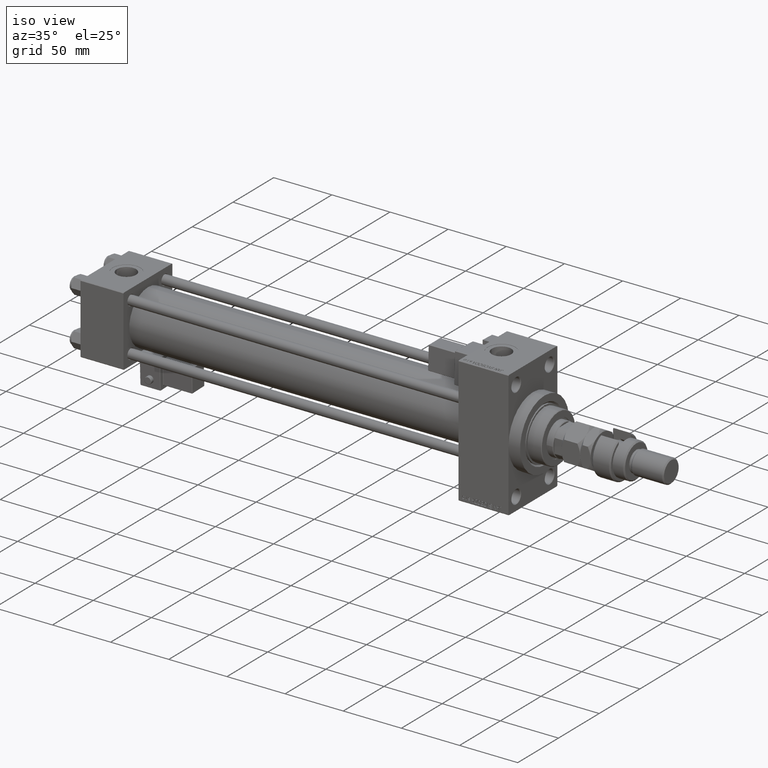
[diagram: clean part render]
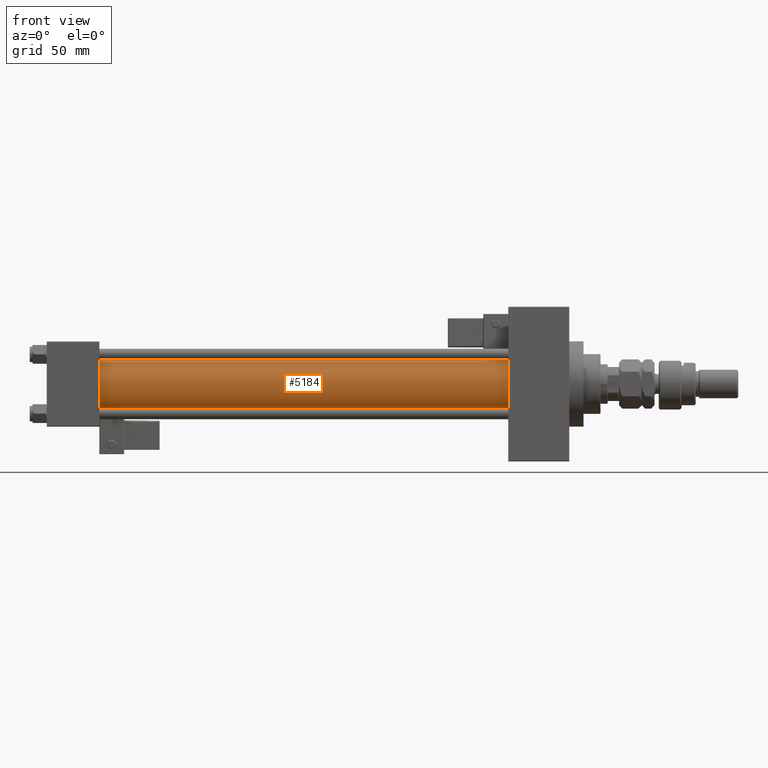
[diagram: tour spotlight — one face highlighted and labeled with its STEP entity id]
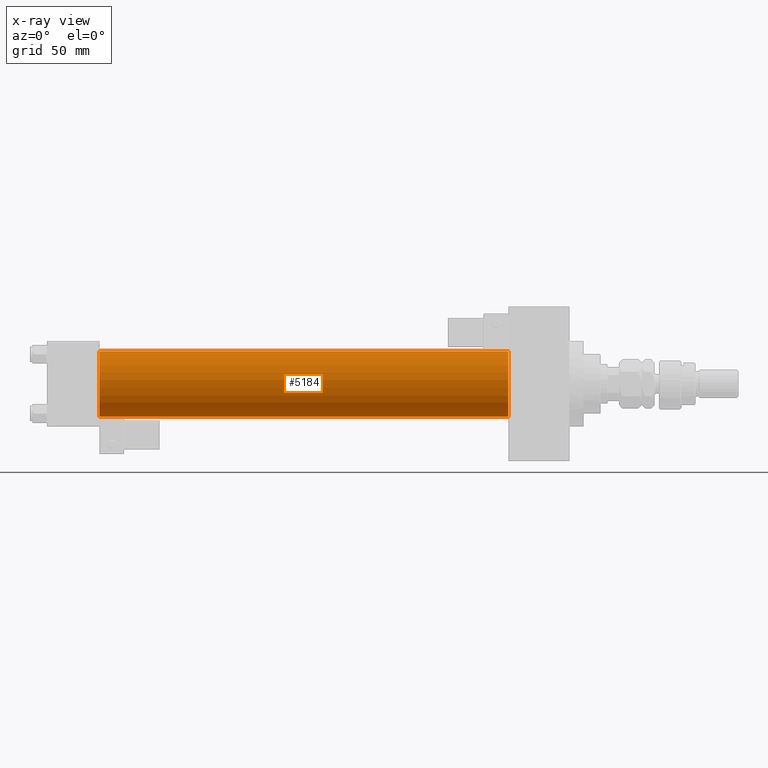
[diagram: x-ray of the same camera — body ghosted, this tour face saturated]
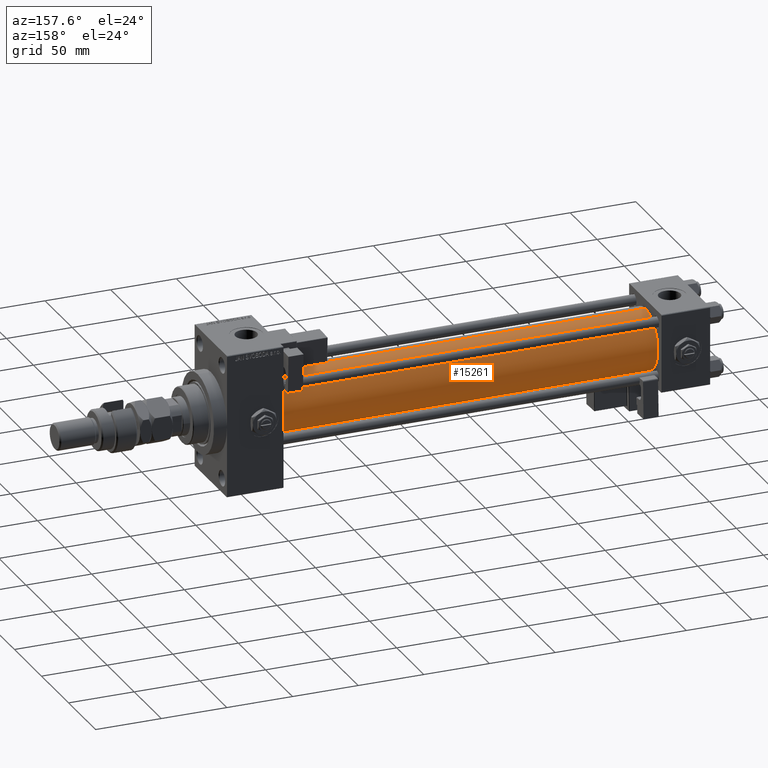
[diagram: tour spotlight — one face highlighted and labeled with its STEP entity id]
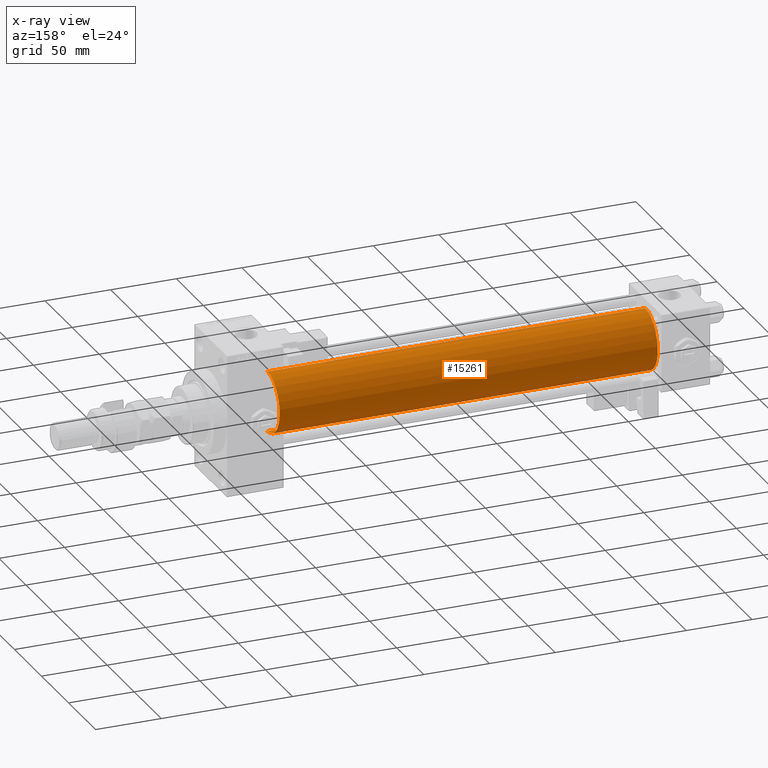
[diagram: x-ray of the same camera — body ghosted, this tour face saturated]
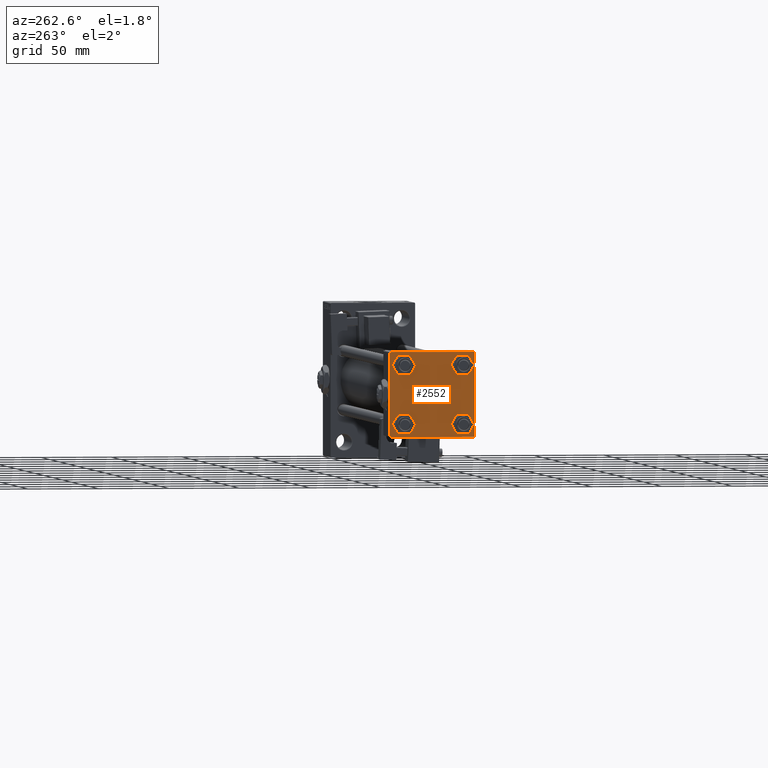
[diagram: tour spotlight — one face highlighted and labeled with its STEP entity id]
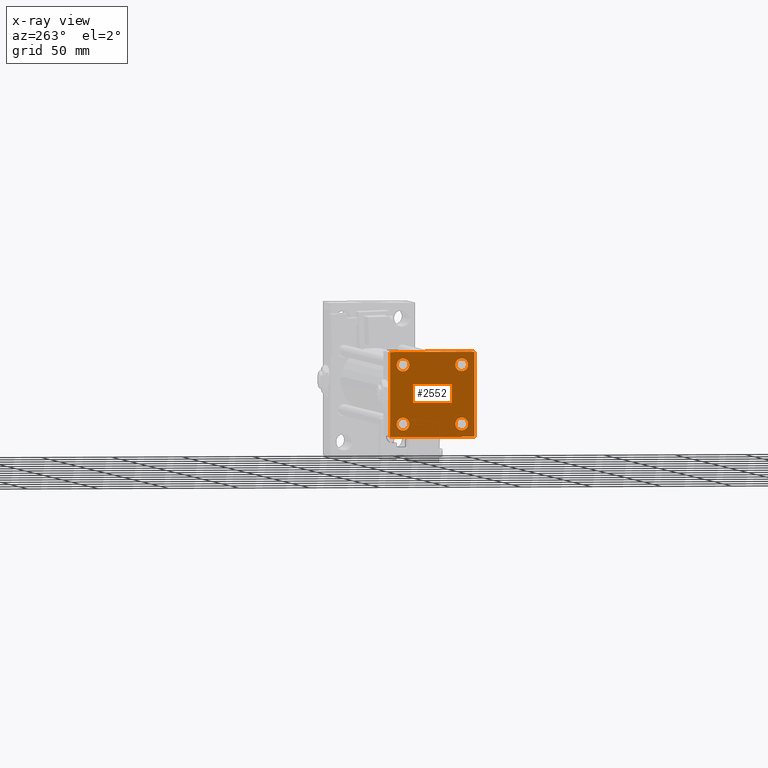
[diagram: x-ray of the same camera — body ghosted, this tour face saturated]
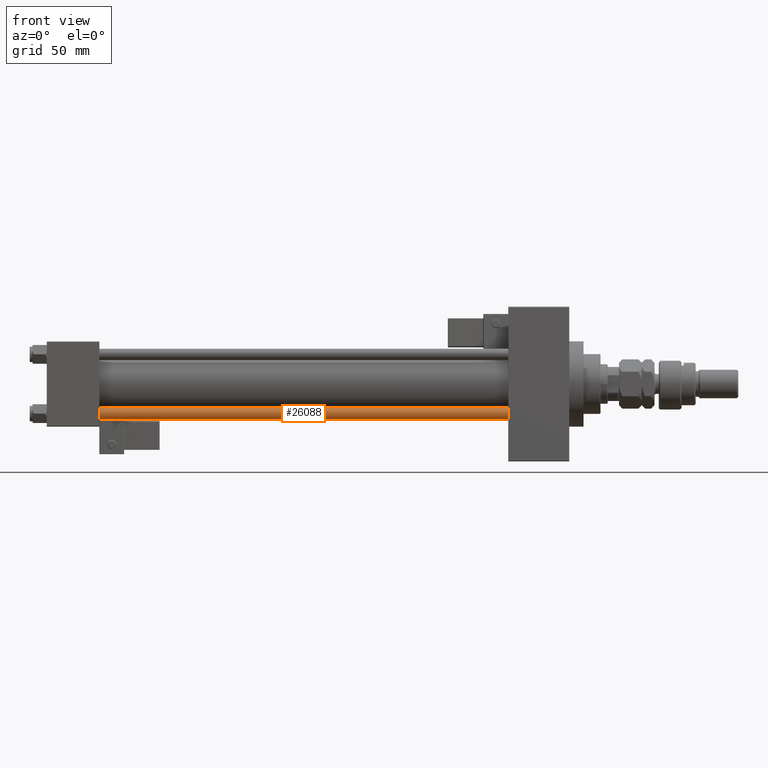
[diagram: tour spotlight — one face highlighted and labeled with its STEP entity id]
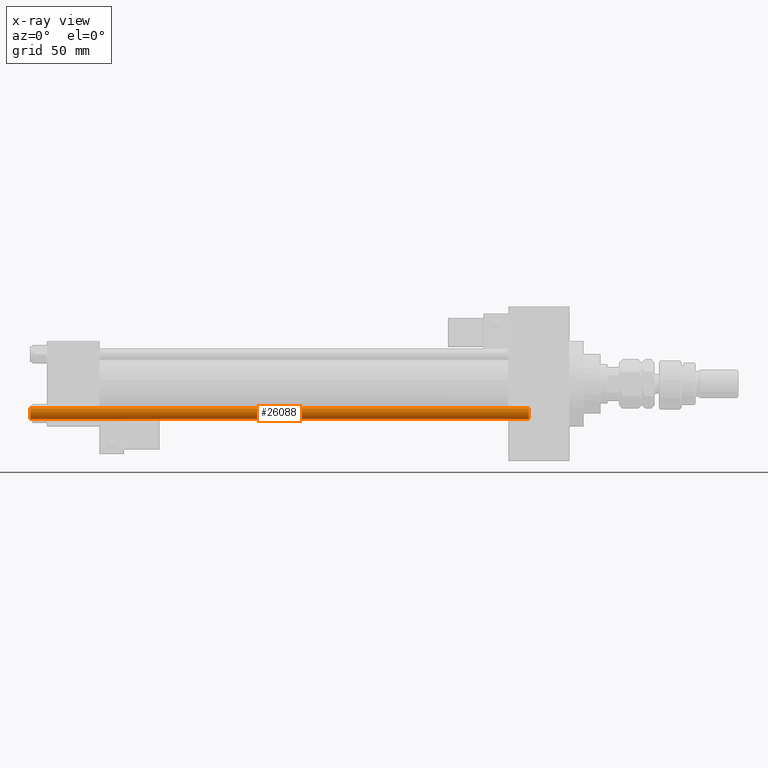
[diagram: x-ray of the same camera — body ghosted, this tour face saturated]
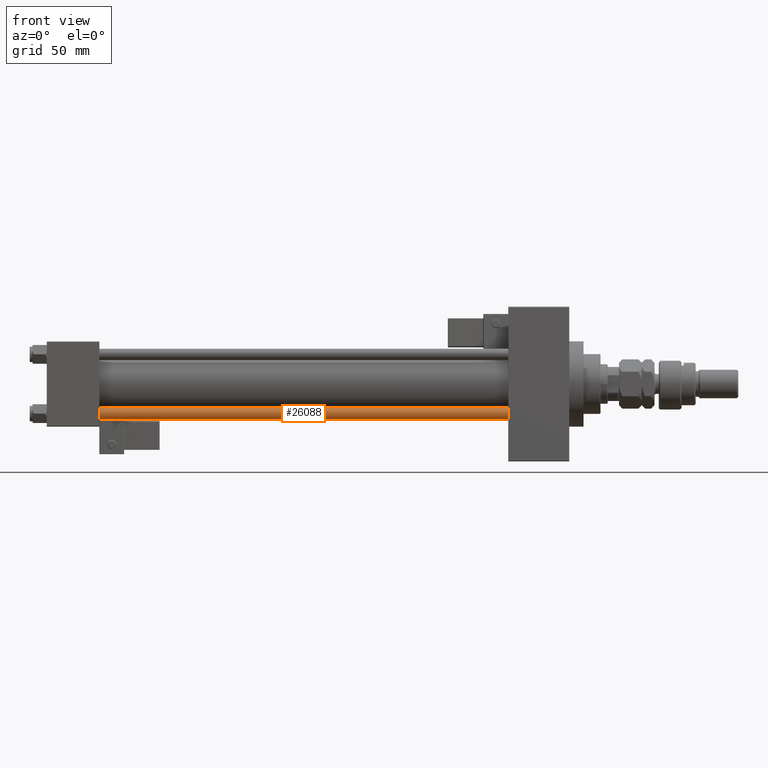
[diagram: tour spotlight — one face highlighted and labeled with its STEP entity id]
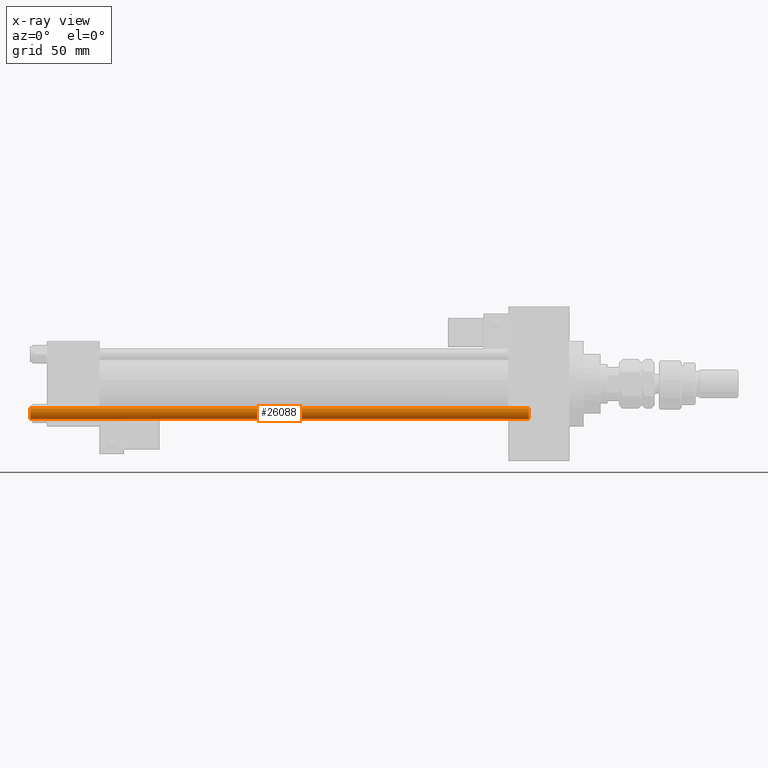
[diagram: x-ray of the same camera — body ghosted, this tour face saturated]
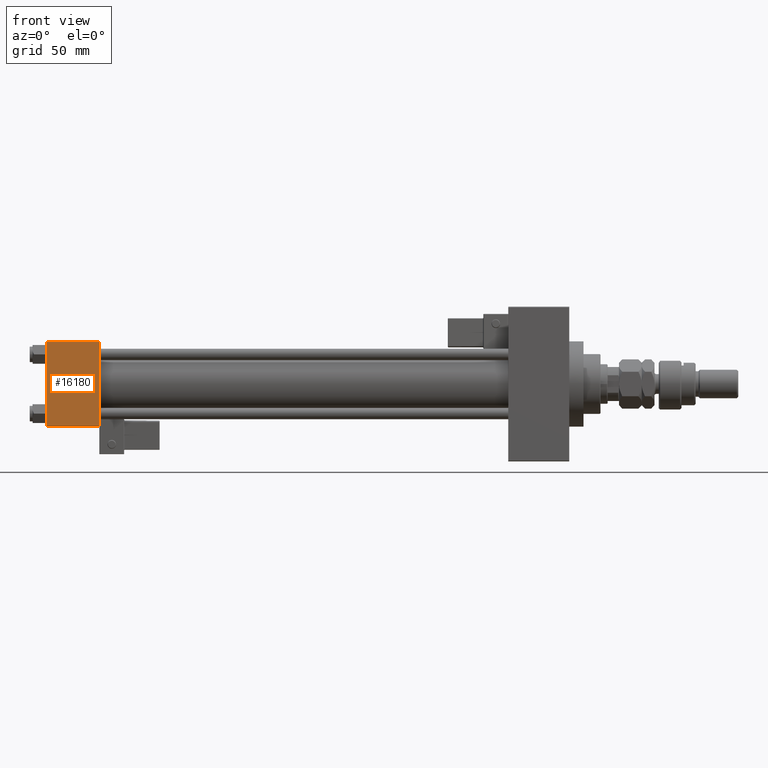
[diagram: tour spotlight — one face highlighted and labeled with its STEP entity id]
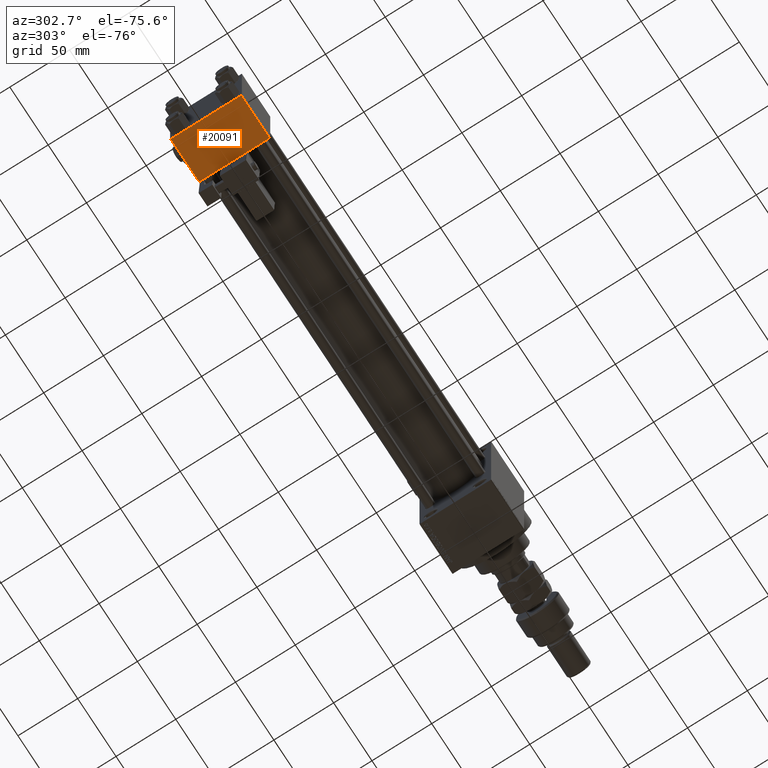
[diagram: tour spotlight — one face highlighted and labeled with its STEP entity id]
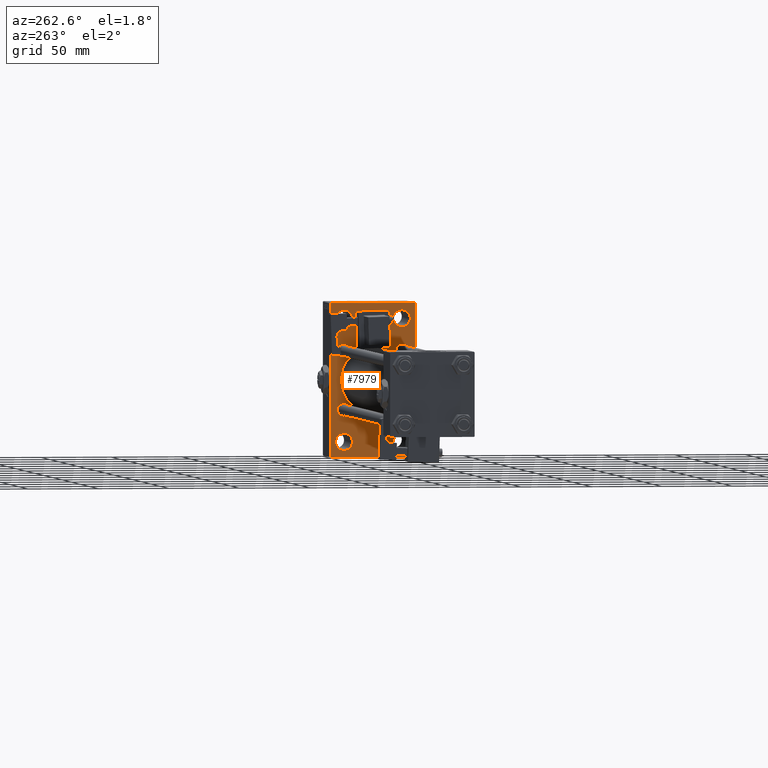
[diagram: tour spotlight — one face highlighted and labeled with its STEP entity id]
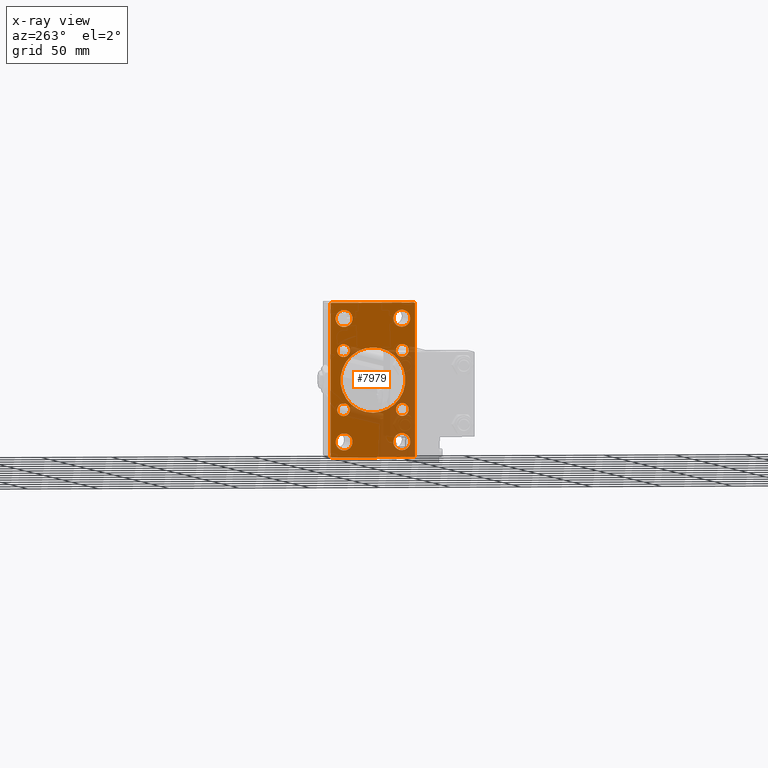
[diagram: x-ray of the same camera — body ghosted, this tour face saturated]
A machine part: a face-by-face anatomy tour. The part has 1454 B-rep faces; the first image is the clean iso view, then the 8 largest visible faces are spotlighted one at a time (largest first), each with its STEP entity span.

Face 1 — front view, entity #5184. An x-ray twin of the same camera follows (body ghosted, this face saturated) — the face is partly hidden behind the body. In plain terms, the highlighted cylindrical surface (edge-blend (fillet) strip) has radius 23 mm, axis along (-1, -0, -0).
Definition (entity closure, byte-faithful):
#22 = EDGE_CURVE ( 'NONE', #50199, #21836, #54252, .T. ) ;
#3015 = DIRECTION ( 'NONE',  ( 1.000000000000000000, 0.000000000000000000, 0.000000000000000000 ) ) ;
#4197 = AXIS2_PLACEMENT_3D ( 'NONE', #16012, #3015, #36465 ) ;
#4423 = EDGE_LOOP ( 'NONE', ( #32844, #20375, #17465, #39735 ) ) ;
#5184 = ADVANCED_FACE ( 'NONE', ( #42451 ), #51012, .T. ) ;
#5712 = AXIS2_PLACEMENT_3D ( 'NONE', #29322, #24917, #41755 ) ;
#6929 = EDGE_CURVE ( 'NONE', #36349, #21836, #30376, .T. ) ;
#7922 = DIRECTION ( 'NONE',  ( 0.000000000000000000, 0.000000000000000000, 1.000000000000000000 ) ) ;
#10480 = CARTESIAN_POINT ( 'NONE',  ( 36.99999999999997868, 2.146024240737016609E-16, -23.00000000000000000 ) ) ;
#12542 = EDGE_CURVE ( 'NONE', #43930, #50199, #38173, .T. ) ;
#14645 = CARTESIAN_POINT ( 'NONE',  ( 36.99999999999997868, -2.602085213965210642E-15, 23.00000000000000000 ) ) ;
#15666 = EDGE_CURVE ( 'NONE', #43930, #36349, #28017, .T. ) ;
#16012 = CARTESIAN_POINT ( 'NONE',  ( 324.9999999999999432, -2.602085213965210642E-15, 0.000000000000000000 ) ) ;
#16664 = CARTESIAN_POINT ( 'NONE',  ( 324.9999999999999432, -2.602085213965210642E-15, 23.00000000000000000 ) ) ;
#17310 = CARTESIAN_POINT ( 'NONE',  ( 324.9999999999999432, -2.602085213965210642E-15, 0.000000000000000000 ) ) ;
#17465 = ORIENTED_EDGE ( 'NONE', *, *, #12542, .T. ) ;
#20375 = ORIENTED_EDGE ( 'NONE', *, *, #15666, .F. ) ;
#21836 = VERTEX_POINT ( 'NONE', #10480 ) ;
#24917 = DIRECTION ( 'NONE',  ( 1.000000000000000000, -0.000000000000000000, 0.000000000000000000 ) ) ;
#25337 = DIRECTION ( 'NONE',  ( -1.000000000000000000, -0.000000000000000000, -0.000000000000000000 ) ) ;
#26229 = CARTESIAN_POINT ( 'NONE',  ( 324.9999999999999432, 2.146024240737016609E-16, -23.00000000000000000 ) ) ;
#28017 = CIRCLE ( 'NONE', #4197, 23.00000000000000000 ) ;
#28648 = VECTOR ( 'NONE', #40820, 1000.000000000000000 ) ;
#29322 = CARTESIAN_POINT ( 'NONE',  ( 36.99999999999997868, -2.602085213965210642E-15, 0.000000000000000000 ) ) ;
#29826 = AXIS2_PLACEMENT_3D ( 'NONE', #17310, #25337, #7922 ) ;
#30376 = LINE ( 'NONE', #26229, #28648 ) ;
#31570 = VECTOR ( 'NONE', #38447, 1000.000000000000000 ) ;
#32844 = ORIENTED_EDGE ( 'NONE', *, *, #6929, .F. ) ;
#36349 = VERTEX_POINT ( 'NONE', #52716 ) ;
#36465 = DIRECTION ( 'NONE',  ( 0.000000000000000000, 0.000000000000000000, -1.000000000000000000 ) ) ;
#38173 = LINE ( 'NONE', #50051, #31570 ) ;
#38447 = DIRECTION ( 'NONE',  ( -1.000000000000000000, -0.000000000000000000, -0.000000000000000000 ) ) ;
#39735 = ORIENTED_EDGE ( 'NONE', *, *, #22, .T. ) ;
#40820 = DIRECTION ( 'NONE',  ( -1.000000000000000000, -0.000000000000000000, -0.000000000000000000 ) ) ;
#41755 = DIRECTION ( 'NONE',  ( 0.000000000000000000, 0.000000000000000000, 1.000000000000000000 ) ) ;
#42451 = FACE_OUTER_BOUND ( 'NONE', #4423, .T. ) ;
#43930 = VERTEX_POINT ( 'NONE', #16664 ) ;
#50051 = CARTESIAN_POINT ( 'NONE',  ( 324.9999999999999432, -2.602085213965210642E-15, 23.00000000000000000 ) ) ;
#50199 = VERTEX_POINT ( 'NONE', #14645 ) ;
#51012 = CYLINDRICAL_SURFACE ( 'NONE', #29826, 23.00000000000000000 ) ;
#52716 = CARTESIAN_POINT ( 'NONE',  ( 324.9999999999999432, 2.146024240737016609E-16, -23.00000000000000000 ) ) ;
#54252 = CIRCLE ( 'NONE', #5712, 23.00000000000000000 ) ;

Face 2 — auxiliary view, entity #15261. An x-ray twin of the same camera follows (body ghosted, this face saturated) — the face is partly hidden behind the body. In plain terms, the highlighted cylindrical surface (edge-blend (fillet) strip) has radius 23 mm, axis along (-1, -0, -0).
Definition (entity closure, byte-faithful):
#2431 = EDGE_CURVE ( 'NONE', #36349, #43930, #8515, .T. ) ;
#3337 = ORIENTED_EDGE ( 'NONE', *, *, #2431, .F. ) ;
#5190 = DIRECTION ( 'NONE',  ( 1.000000000000000000, -0.000000000000000000, 0.000000000000000000 ) ) ;
#5844 = AXIS2_PLACEMENT_3D ( 'NONE', #43038, #5190, #42217 ) ;
#6929 = EDGE_CURVE ( 'NONE', #36349, #21836, #30376, .T. ) ;
#7953 = ORIENTED_EDGE ( 'NONE', *, *, #53865, .T. ) ;
#8515 = CIRCLE ( 'NONE', #51735, 23.00000000000000000 ) ;
#10480 = CARTESIAN_POINT ( 'NONE',  ( 36.99999999999997868, 2.146024240737016609E-16, -23.00000000000000000 ) ) ;
#10673 = ORIENTED_EDGE ( 'NONE', *, *, #12542, .F. ) ;
#12542 = EDGE_CURVE ( 'NONE', #43930, #50199, #38173, .T. ) ;
#14645 = CARTESIAN_POINT ( 'NONE',  ( 36.99999999999997868, -2.602085213965210642E-15, 23.00000000000000000 ) ) ;
#14783 = CARTESIAN_POINT ( 'NONE',  ( 324.9999999999999432, -2.602085213965210642E-15, 0.000000000000000000 ) ) ;
#15261 = ADVANCED_FACE ( 'NONE', ( #39637 ), #48471, .T. ) ;
#15822 = CARTESIAN_POINT ( 'NONE',  ( 324.9999999999999432, -2.602085213965210642E-15, 0.000000000000000000 ) ) ;
#16664 = CARTESIAN_POINT ( 'NONE',  ( 324.9999999999999432, -2.602085213965210642E-15, 23.00000000000000000 ) ) ;
#21836 = VERTEX_POINT ( 'NONE', #10480 ) ;
#21979 = DIRECTION ( 'NONE',  ( -1.000000000000000000, -0.000000000000000000, -0.000000000000000000 ) ) ;
#26137 = DIRECTION ( 'NONE',  ( 0.000000000000000000, 0.000000000000000000, 1.000000000000000000 ) ) ;
#26229 = CARTESIAN_POINT ( 'NONE',  ( 324.9999999999999432, 2.146024240737016609E-16, -23.00000000000000000 ) ) ;
#27032 = CIRCLE ( 'NONE', #5844, 23.00000000000000000 ) ;
#28095 = ORIENTED_EDGE ( 'NONE', *, *, #6929, .T. ) ;
#28648 = VECTOR ( 'NONE', #40820, 1000.000000000000000 ) ;
#30376 = LINE ( 'NONE', #26229, #28648 ) ;
#31570 = VECTOR ( 'NONE', #38447, 1000.000000000000000 ) ;
#32667 = DIRECTION ( 'NONE',  ( 1.000000000000000000, 0.000000000000000000, 0.000000000000000000 ) ) ;
#35079 = AXIS2_PLACEMENT_3D ( 'NONE', #14783, #21979, #26137 ) ;
#36349 = VERTEX_POINT ( 'NONE', #52716 ) ;
#38173 = LINE ( 'NONE', #50051, #31570 ) ;
#38447 = DIRECTION ( 'NONE',  ( -1.000000000000000000, -0.000000000000000000, -0.000000000000000000 ) ) ;
#39637 = FACE_OUTER_BOUND ( 'NONE', #40386, .T. ) ;
#40386 = EDGE_LOOP ( 'NONE', ( #3337, #28095, #7953, #10673 ) ) ;
#40820 = DIRECTION ( 'NONE',  ( -1.000000000000000000, -0.000000000000000000, -0.000000000000000000 ) ) ;
#42217 = DIRECTION ( 'NONE',  ( 0.000000000000000000, 0.000000000000000000, 1.000000000000000000 ) ) ;
#43038 = CARTESIAN_POINT ( 'NONE',  ( 36.99999999999997868, -2.602085213965210642E-15, 0.000000000000000000 ) ) ;
#43930 = VERTEX_POINT ( 'NONE', #16664 ) ;
#48471 = CYLINDRICAL_SURFACE ( 'NONE', #35079, 23.00000000000000000 ) ;
#50051 = CARTESIAN_POINT ( 'NONE',  ( 324.9999999999999432, -2.602085213965210642E-15, 23.00000000000000000 ) ) ;
#50199 = VERTEX_POINT ( 'NONE', #14645 ) ;
#51735 = AXIS2_PLACEMENT_3D ( 'NONE', #15822, #32667, #53379 ) ;
#52716 = CARTESIAN_POINT ( 'NONE',  ( 324.9999999999999432, 2.146024240737016609E-16, -23.00000000000000000 ) ) ;
#53379 = DIRECTION ( 'NONE',  ( 0.000000000000000000, 0.000000000000000000, -1.000000000000000000 ) ) ;
#53865 = EDGE_CURVE ( 'NONE', #21836, #50199, #27032, .T. ) ;

Face 3 — auxiliary view, entity #2552. An x-ray twin of the same camera follows (body ghosted, this face saturated) — the face is partly hidden behind the body. In plain terms, the highlighted planar face has unit normal (-1, 0, 0).
Definition (entity closure, byte-faithful):
#316 = CARTESIAN_POINT ( 'NONE',  ( 0.000000000000000000, 0.000000000000000000, 0.000000000000000000 ) ) ;
#685 = VERTEX_POINT ( 'NONE', #13506 ) ;
#749 = EDGE_CURVE ( 'NONE', #5895, #19553, #38426, .T. ) ;
#1231 = CARTESIAN_POINT ( 'NONE',  ( 0.000000000000000000, 20.84999999999999787, 20.85000000000000142 ) ) ;
#1271 = ORIENTED_EDGE ( 'NONE', *, *, #46493, .T. ) ;
#1362 = CARTESIAN_POINT ( 'NONE',  ( 0.000000000000000000, 29.99999999999999289, -30.00000000000000000 ) ) ;
#2174 = EDGE_CURVE ( 'NONE', #21953, #685, #4981, .T. ) ;
#2505 = EDGE_LOOP ( 'NONE', ( #51951, #53805, #21274, #31754, #27646, #27256, #30818, #31800 ) ) ;
#2552 = ADVANCED_FACE ( 'NONE', ( #29621, #46463, #8608, #17178, #4479 ), #30169, .T. ) ;
#2824 = DIRECTION ( 'NONE',  ( 1.000000000000000000, -0.000000000000000000, 0.000000000000000000 ) ) ;
#3204 = DIRECTION ( 'NONE',  ( 1.000000000000000000, -0.000000000000000000, 0.000000000000000000 ) ) ;
#3208 = DIRECTION ( 'NONE',  ( 1.000000000000000000, -0.000000000000000000, 0.000000000000000000 ) ) ;
#3284 = EDGE_CURVE ( 'NONE', #52547, #11495, #41160, .T. ) ;
#4114 = EDGE_CURVE ( 'NONE', #27577, #44980, #44142, .T. ) ;
#4479 = FACE_OUTER_BOUND ( 'NONE', #2505, .T. ) ;
#4864 = CARTESIAN_POINT ( 'NONE',  ( 0.000000000000000000, -20.84999999999999076, -20.85000000000000497 ) ) ;
#4981 = CIRCLE ( 'NONE', #32344, 4.500000000000017764 ) ;
#4994 = CIRCLE ( 'NONE', #42929, 4.500000000000017764 ) ;
#5015 = DIRECTION ( 'NONE',  ( -0.000000000000000000, 0.000000000000000000, 1.000000000000000000 ) ) ;
#5110 = DIRECTION ( 'NONE',  ( 0.000000000000000000, 0.000000000000000000, -1.000000000000000000 ) ) ;
#5160 = DIRECTION ( 'NONE',  ( 0.000000000000000000, 0.000000000000000000, 1.000000000000000000 ) ) ;
#5521 = LINE ( 'NONE', #1362, #45981 ) ;
#5591 = VECTOR ( 'NONE', #36255, 999.9999999999998863 ) ;
#5895 = VERTEX_POINT ( 'NONE', #30160 ) ;
#6737 = EDGE_LOOP ( 'NONE', ( #22364, #51901 ) ) ;
#6925 = EDGE_LOOP ( 'NONE', ( #18468, #13354 ) ) ;
#7354 = CARTESIAN_POINT ( 'NONE',  ( 0.000000000000000000, -20.84999999999999076, -20.85000000000000497 ) ) ;
#8025 = ORIENTED_EDGE ( 'NONE', *, *, #2174, .T. ) ;
#8608 = FACE_BOUND ( 'NONE', #6737, .T. ) ;
#9395 = VERTEX_POINT ( 'NONE', #10858 ) ;
#10858 = CARTESIAN_POINT ( 'NONE',  ( 0.000000000000000000, -29.49999999999998579, 29.99999999999999289 ) ) ;
#10908 = EDGE_CURVE ( 'NONE', #11495, #52547, #29719, .T. ) ;
#11495 = VERTEX_POINT ( 'NONE', #19123 ) ;
#11730 = DIRECTION ( 'NONE',  ( 1.000000000000000000, -0.000000000000000000, 0.000000000000000000 ) ) ;
#12816 = EDGE_CURVE ( 'NONE', #53009, #26806, #32064, .T. ) ;
#13354 = ORIENTED_EDGE ( 'NONE', *, *, #749, .T. ) ;
#13416 = CARTESIAN_POINT ( 'NONE',  ( 0.000000000000000000, 29.99999999999999289, 30.00000000000000000 ) ) ;
#13506 = CARTESIAN_POINT ( 'NONE',  ( 0.000000000000000000, -20.84999999999999076, 25.35000000000002274 ) ) ;
#13726 = CARTESIAN_POINT ( 'NONE',  ( 0.000000000000000000, -29.50000000000000000, -30.00000000000000711 ) ) ;
#14672 = DIRECTION ( 'NONE',  ( 0.000000000000000000, 0.7071067811865474617, -0.7071067811865474617 ) ) ;
#15338 = EDGE_CURVE ( 'NONE', #50093, #9395, #53696, .T. ) ;
#15588 = AXIS2_PLACEMENT_3D ( 'NONE', #316, #34318, #5015 ) ;
#16009 = EDGE_CURVE ( 'NONE', #50093, #44980, #44955, .T. ) ;
#16140 = DIRECTION ( 'NONE',  ( -0.000000000000000000, 0.7071067811865474617, 0.7071067811865474617 ) ) ;
#17178 = FACE_BOUND ( 'NONE', #6925, .T. ) ;
#18222 = DIRECTION ( 'NONE',  ( 0.000000000000000000, -1.000000000000000000, -1.156482317317871725E-16 ) ) ;
#18228 = AXIS2_PLACEMENT_3D ( 'NONE', #4864, #20888, #50725 ) ;
#18468 = ORIENTED_EDGE ( 'NONE', *, *, #50735, .T. ) ;
#18804 = CIRCLE ( 'NONE', #54090, 4.500000000000017764 ) ;
#19123 = CARTESIAN_POINT ( 'NONE',  ( 0.000000000000000000, -20.84999999999999076, -25.35000000000002274 ) ) ;
#19553 = VERTEX_POINT ( 'NONE', #40667 ) ;
#19661 = LINE ( 'NONE', #36527, #5591 ) ;
#19780 = VERTEX_POINT ( 'NONE', #30696 ) ;
#19995 = CARTESIAN_POINT ( 'NONE',  ( -0.000000000000000000, -29.74999999999999645, 29.74999999999999645 ) ) ;
#20112 = VECTOR ( 'NONE', #23689, 1000.000000000000000 ) ;
#20888 = DIRECTION ( 'NONE',  ( 1.000000000000000000, -0.000000000000000000, 0.000000000000000000 ) ) ;
#21089 = EDGE_CURVE ( 'NONE', #26806, #22608, #25299, .T. ) ;
#21274 = ORIENTED_EDGE ( 'NONE', *, *, #23191, .T. ) ;
#21419 = CARTESIAN_POINT ( 'NONE',  ( 0.000000000000000000, 29.99999999999999289, 30.00000000000000000 ) ) ;
#21422 = CIRCLE ( 'NONE', #24067, 4.500000000000017764 ) ;
#21423 = DIRECTION ( 'NONE',  ( 0.000000000000000000, -1.000000000000000000, -1.156482317317871725E-16 ) ) ;
#21754 = CARTESIAN_POINT ( 'NONE',  ( 0.000000000000000000, 29.49999999999999289, 30.00000000000000000 ) ) ;
#21953 = VERTEX_POINT ( 'NONE', #53825 ) ;
#22364 = ORIENTED_EDGE ( 'NONE', *, *, #31431, .T. ) ;
#22373 = CARTESIAN_POINT ( 'NONE',  ( 0.000000000000000000, 29.99999999999999289, -29.50000000000000000 ) ) ;
#22608 = VERTEX_POINT ( 'NONE', #22373 ) ;
#23191 = EDGE_CURVE ( 'NONE', #19780, #27577, #5521, .T. ) ;
#23420 = DIRECTION ( 'NONE',  ( 0.000000000000000000, 0.000000000000000000, 1.000000000000000000 ) ) ;
#23689 = DIRECTION ( 'NONE',  ( 0.000000000000000000, 0.000000000000000000, -1.000000000000000000 ) ) ;
#24067 = AXIS2_PLACEMENT_3D ( 'NONE', #54310, #3208, #28366 ) ;
#24199 = EDGE_LOOP ( 'NONE', ( #1271, #8025 ) ) ;
#25299 = LINE ( 'NONE', #21419, #37076 ) ;
#25551 = CARTESIAN_POINT ( 'NONE',  ( 0.000000000000000000, 29.99999999999999289, 29.50000000000000000 ) ) ;
#25993 = CARTESIAN_POINT ( 'NONE',  ( 0.000000000000000000, -30.00000000000000000, 29.49999999999999289 ) ) ;
#26806 = VERTEX_POINT ( 'NONE', #25551 ) ;
#27109 = AXIS2_PLACEMENT_3D ( 'NONE', #50477, #46333, #5160 ) ;
#27118 = CARTESIAN_POINT ( 'NONE',  ( 0.000000000000000000, -20.84999999999999076, -16.34999999999998721 ) ) ;
#27256 = ORIENTED_EDGE ( 'NONE', *, *, #15338, .T. ) ;
#27435 = DIRECTION ( 'NONE',  ( 0.000000000000000000, 0.000000000000000000, 1.000000000000000000 ) ) ;
#27577 = VERTEX_POINT ( 'NONE', #13726 ) ;
#27646 = ORIENTED_EDGE ( 'NONE', *, *, #16009, .F. ) ;
#28366 = DIRECTION ( 'NONE',  ( 0.000000000000000000, 0.000000000000000000, 1.000000000000000000 ) ) ;
#28587 = DIRECTION ( 'NONE',  ( 0.000000000000000000, 0.000000000000000000, 1.000000000000000000 ) ) ;
#29621 = FACE_BOUND ( 'NONE', #24199, .T. ) ;
#29719 = CIRCLE ( 'NONE', #18228, 4.500000000000017764 ) ;
#30160 = CARTESIAN_POINT ( 'NONE',  ( 0.000000000000000000, 20.84999999999999787, 16.34999999999998366 ) ) ;
#30169 = PLANE ( 'NONE',  #15588 ) ;
#30635 = CIRCLE ( 'NONE', #27109, 4.500000000000017764 ) ;
#30696 = CARTESIAN_POINT ( 'NONE',  ( 0.000000000000000000, 29.49999999999997868, -30.00000000000000000 ) ) ;
#30719 = EDGE_CURVE ( 'NONE', #45157, #49000, #4994, .T. ) ;
#30818 = ORIENTED_EDGE ( 'NONE', *, *, #53308, .F. ) ;
#30951 = CARTESIAN_POINT ( 'NONE',  ( 0.000000000000000000, 20.84999999999999787, -25.35000000000001918 ) ) ;
#31431 = EDGE_CURVE ( 'NONE', #49000, #45157, #30635, .T. ) ;
#31754 = ORIENTED_EDGE ( 'NONE', *, *, #4114, .T. ) ;
#31800 = ORIENTED_EDGE ( 'NONE', *, *, #12816, .T. ) ;
#31861 = CARTESIAN_POINT ( 'NONE',  ( 0.000000000000000000, 20.84999999999999787, -20.85000000000000142 ) ) ;
#32022 = CARTESIAN_POINT ( 'NONE',  ( 0.000000000000000000, 20.84999999999999787, -16.34999999999998366 ) ) ;
#32064 = LINE ( 'NONE', #49441, #33306 ) ;
#32344 = AXIS2_PLACEMENT_3D ( 'NONE', #49569, #11730, #28587 ) ;
#32418 = VECTOR ( 'NONE', #51876, 1000.000000000000114 ) ;
#33306 = VECTOR ( 'NONE', #14672, 1000.000000000000114 ) ;
#34318 = DIRECTION ( 'NONE',  ( -1.000000000000000000, 0.000000000000000000, -0.000000000000000000 ) ) ;
#34633 = ORIENTED_EDGE ( 'NONE', *, *, #10908, .T. ) ;
#34958 = DIRECTION ( 'NONE',  ( 1.000000000000000000, -0.000000000000000000, 0.000000000000000000 ) ) ;
#36043 = DIRECTION ( 'NONE',  ( 0.000000000000000000, 0.000000000000000000, 1.000000000000000000 ) ) ;
#36125 = CARTESIAN_POINT ( 'NONE',  ( 0.000000000000000000, 20.84999999999999787, 20.85000000000000142 ) ) ;
#36255 = DIRECTION ( 'NONE',  ( -0.000000000000000000, -0.7071067811865574537, -0.7071067811865376918 ) ) ;
#36527 = CARTESIAN_POINT ( 'NONE',  ( 0.000000000000000000, 29.74999999999957723, -29.75000000000040501 ) ) ;
#36641 = AXIS2_PLACEMENT_3D ( 'NONE', #36125, #49088, #23420 ) ;
#36921 = DIRECTION ( 'NONE',  ( 0.000000000000000000, 0.000000000000000000, 1.000000000000000000 ) ) ;
#37076 = VECTOR ( 'NONE', #5110, 1000.000000000000000 ) ;
#37482 = CARTESIAN_POINT ( 'NONE',  ( 0.000000000000000000, -30.00000000000000000, 29.99999999999999289 ) ) ;
#38426 = CIRCLE ( 'NONE', #36641, 4.500000000000017764 ) ;
#39480 = VECTOR ( 'NONE', #16140, 1000.000000000000114 ) ;
#39715 = CARTESIAN_POINT ( 'NONE',  ( 0.000000000000000000, -29.75000000000001066, -29.75000000000001066 ) ) ;
#40308 = AXIS2_PLACEMENT_3D ( 'NONE', #7354, #3204, #36921 ) ;
#40667 = CARTESIAN_POINT ( 'NONE',  ( 0.000000000000000000, 20.84999999999999787, 25.35000000000001918 ) ) ;
#41160 = CIRCLE ( 'NONE', #40308, 4.500000000000017764 ) ;
#42687 = LINE ( 'NONE', #13416, #46295 ) ;
#42929 = AXIS2_PLACEMENT_3D ( 'NONE', #31861, #2824, #27435 ) ;
#43915 = EDGE_LOOP ( 'NONE', ( #50986, #34633 ) ) ;
#44142 = LINE ( 'NONE', #39715, #32418 ) ;
#44955 = LINE ( 'NONE', #37482, #20112 ) ;
#44980 = VERTEX_POINT ( 'NONE', #50025 ) ;
#45157 = VERTEX_POINT ( 'NONE', #30951 ) ;
#45981 = VECTOR ( 'NONE', #18222, 1000.000000000000000 ) ;
#46295 = VECTOR ( 'NONE', #21423, 1000.000000000000000 ) ;
#46333 = DIRECTION ( 'NONE',  ( 1.000000000000000000, -0.000000000000000000, 0.000000000000000000 ) ) ;
#46463 = FACE_BOUND ( 'NONE', #43915, .T. ) ;
#46493 = EDGE_CURVE ( 'NONE', #685, #21953, #21422, .T. ) ;
#49000 = VERTEX_POINT ( 'NONE', #32022 ) ;
#49088 = DIRECTION ( 'NONE',  ( 1.000000000000000000, -0.000000000000000000, 0.000000000000000000 ) ) ;
#49441 = CARTESIAN_POINT ( 'NONE',  ( 0.000000000000000000, 29.74999999999999645, 29.74999999999999645 ) ) ;
#49569 = CARTESIAN_POINT ( 'NONE',  ( 0.000000000000000000, -20.84999999999999076, 20.85000000000000497 ) ) ;
#50025 = CARTESIAN_POINT ( 'NONE',  ( 0.000000000000000000, -30.00000000000000000, -29.50000000000001776 ) ) ;
#50093 = VERTEX_POINT ( 'NONE', #25993 ) ;
#50477 = CARTESIAN_POINT ( 'NONE',  ( 0.000000000000000000, 20.84999999999999787, -20.85000000000000142 ) ) ;
#50725 = DIRECTION ( 'NONE',  ( 0.000000000000000000, 0.000000000000000000, 1.000000000000000000 ) ) ;
#50735 = EDGE_CURVE ( 'NONE', #19553, #5895, #18804, .T. ) ;
#50986 = ORIENTED_EDGE ( 'NONE', *, *, #3284, .T. ) ;
#51326 = EDGE_CURVE ( 'NONE', #22608, #19780, #19661, .T. ) ;
#51876 = DIRECTION ( 'NONE',  ( 0.000000000000000000, -0.7071067811865474617, 0.7071067811865474617 ) ) ;
#51901 = ORIENTED_EDGE ( 'NONE', *, *, #30719, .T. ) ;
#51951 = ORIENTED_EDGE ( 'NONE', *, *, #21089, .T. ) ;
#52547 = VERTEX_POINT ( 'NONE', #27118 ) ;
#53009 = VERTEX_POINT ( 'NONE', #21754 ) ;
#53308 = EDGE_CURVE ( 'NONE', #53009, #9395, #42687, .T. ) ;
#53696 = LINE ( 'NONE', #19995, #39480 ) ;
#53805 = ORIENTED_EDGE ( 'NONE', *, *, #51326, .T. ) ;
#53825 = CARTESIAN_POINT ( 'NONE',  ( 0.000000000000000000, -20.84999999999999076, 16.34999999999998721 ) ) ;
#54090 = AXIS2_PLACEMENT_3D ( 'NONE', #1231, #34958, #36043 ) ;
#54310 = CARTESIAN_POINT ( 'NONE',  ( 0.000000000000000000, -20.84999999999999076, 20.85000000000000497 ) ) ;

Face 4 — front view, entity #26088. An x-ray twin of the same camera follows (body ghosted, this face saturated) — the face is partly hidden behind the body. In plain terms, the highlighted cylindrical surface (edge-blend (fillet) strip) has radius 4 mm, axis along (1, 0, 0).
Definition (entity closure, byte-faithful):
#1076 = VERTEX_POINT ( 'NONE', #48201 ) ;
#1287 = CARTESIAN_POINT ( 'NONE',  ( -4.000000000000000000, 0.000000000000000000, 0.5000000000000004441 ) ) ;
#1337 = CARTESIAN_POINT ( 'NONE',  ( 4.000000000000000000, 4.898587196589412829E-16, 351.5000000000000000 ) ) ;
#1990 = VECTOR ( 'NONE', #9079, 1000.000000000000000 ) ;
#2758 = DIRECTION ( 'NONE',  ( 1.000000000000000000, 0.000000000000000000, 0.000000000000000000 ) ) ;
#7398 = VERTEX_POINT ( 'NONE', #33289 ) ;
#9010 = LINE ( 'NONE', #41898, #33346 ) ;
#9079 = DIRECTION ( 'NONE',  ( -0.000000000000000000, -0.000000000000000000, -1.000000000000000000 ) ) ;
#12218 = DIRECTION ( 'NONE',  ( 0.000000000000000000, 0.000000000000000000, -1.000000000000000000 ) ) ;
#12819 = EDGE_CURVE ( 'NONE', #7398, #34671, #41256, .T. ) ;
#13047 = DIRECTION ( 'NONE',  ( 1.000000000000000000, 0.000000000000000000, 0.000000000000000000 ) ) ;
#14147 = VERTEX_POINT ( 'NONE', #1337 ) ;
#16113 = EDGE_CURVE ( 'NONE', #14147, #7398, #9010, .T. ) ;
#17840 = DIRECTION ( 'NONE',  ( -0.000000000000000000, -0.000000000000000000, -1.000000000000000000 ) ) ;
#19891 = ORIENTED_EDGE ( 'NONE', *, *, #12819, .T. ) ;
#19967 = EDGE_LOOP ( 'NONE', ( #44709, #33792, #19891, #32149 ) ) ;
#20538 = AXIS2_PLACEMENT_3D ( 'NONE', #40614, #39583, #32862 ) ;
#21322 = CARTESIAN_POINT ( 'NONE',  ( 0.000000000000000000, 0.000000000000000000, 351.5000000000000000 ) ) ;
#23497 = CARTESIAN_POINT ( 'NONE',  ( 0.000000000000000000, 0.000000000000000000, 0.5000000000000004441 ) ) ;
#24857 = LINE ( 'NONE', #46390, #1990 ) ;
#26088 = ADVANCED_FACE ( 'NONE', ( #37007 ), #41415, .T. ) ;
#26118 = EDGE_CURVE ( 'NONE', #1076, #34671, #24857, .T. ) ;
#32149 = ORIENTED_EDGE ( 'NONE', *, *, #26118, .F. ) ;
#32862 = DIRECTION ( 'NONE',  ( -1.000000000000000000, 0.000000000000000000, 0.000000000000000000 ) ) ;
#33289 = CARTESIAN_POINT ( 'NONE',  ( 4.000000000000000000, 4.898587196589412829E-16, 0.5000000000000004441 ) ) ;
#33346 = VECTOR ( 'NONE', #17840, 1000.000000000000000 ) ;
#33792 = ORIENTED_EDGE ( 'NONE', *, *, #16113, .T. ) ;
#34671 = VERTEX_POINT ( 'NONE', #1287 ) ;
#35867 = EDGE_CURVE ( 'NONE', #1076, #14147, #51093, .T. ) ;
#36844 = AXIS2_PLACEMENT_3D ( 'NONE', #23497, #48625, #2758 ) ;
#37007 = FACE_OUTER_BOUND ( 'NONE', #19967, .T. ) ;
#39583 = DIRECTION ( 'NONE',  ( -0.000000000000000000, -0.000000000000000000, -1.000000000000000000 ) ) ;
#40614 = CARTESIAN_POINT ( 'NONE',  ( 0.000000000000000000, 0.000000000000000000, 352.0000000000000000 ) ) ;
#41256 = CIRCLE ( 'NONE', #36844, 4.000000000000000000 ) ;
#41415 = CYLINDRICAL_SURFACE ( 'NONE', #20538, 4.000000000000000000 ) ;
#41898 = CARTESIAN_POINT ( 'NONE',  ( 4.000000000000000000, 4.898587196589412829E-16, 352.0000000000000000 ) ) ;
#42296 = AXIS2_PLACEMENT_3D ( 'NONE', #21322, #12218, #13047 ) ;
#44709 = ORIENTED_EDGE ( 'NONE', *, *, #35867, .T. ) ;
#46390 = CARTESIAN_POINT ( 'NONE',  ( -4.000000000000000000, 0.000000000000000000, 352.0000000000000000 ) ) ;
#48201 = CARTESIAN_POINT ( 'NONE',  ( -4.000000000000000000, 0.000000000000000000, 351.5000000000000000 ) ) ;
#48625 = DIRECTION ( 'NONE',  ( -0.000000000000000000, -0.000000000000000000, 1.000000000000000000 ) ) ;
#51093 = CIRCLE ( 'NONE', #42296, 4.000000000000000000 ) ;

Face 5 — front view, entity #26088. An x-ray twin of the same camera follows (body ghosted, this face saturated) — the face is partly hidden behind the body. In plain terms, the highlighted cylindrical surface (edge-blend (fillet) strip) has radius 4 mm, axis along (-1, 0, 0).
Definition (entity closure, byte-faithful):
#1076 = VERTEX_POINT ( 'NONE', #48201 ) ;
#1287 = CARTESIAN_POINT ( 'NONE',  ( -4.000000000000000000, 0.000000000000000000, 0.5000000000000004441 ) ) ;
#1337 = CARTESIAN_POINT ( 'NONE',  ( 4.000000000000000000, 4.898587196589412829E-16, 351.5000000000000000 ) ) ;
#1990 = VECTOR ( 'NONE', #9079, 1000.000000000000000 ) ;
#2758 = DIRECTION ( 'NONE',  ( 1.000000000000000000, 0.000000000000000000, 0.000000000000000000 ) ) ;
#7398 = VERTEX_POINT ( 'NONE', #33289 ) ;
#9010 = LINE ( 'NONE', #41898, #33346 ) ;
#9079 = DIRECTION ( 'NONE',  ( -0.000000000000000000, -0.000000000000000000, -1.000000000000000000 ) ) ;
#12218 = DIRECTION ( 'NONE',  ( 0.000000000000000000, 0.000000000000000000, -1.000000000000000000 ) ) ;
#12819 = EDGE_CURVE ( 'NONE', #7398, #34671, #41256, .T. ) ;
#13047 = DIRECTION ( 'NONE',  ( 1.000000000000000000, 0.000000000000000000, 0.000000000000000000 ) ) ;
#14147 = VERTEX_POINT ( 'NONE', #1337 ) ;
#16113 = EDGE_CURVE ( 'NONE', #14147, #7398, #9010, .T. ) ;
#17840 = DIRECTION ( 'NONE',  ( -0.000000000000000000, -0.000000000000000000, -1.000000000000000000 ) ) ;
#19891 = ORIENTED_EDGE ( 'NONE', *, *, #12819, .T. ) ;
#19967 = EDGE_LOOP ( 'NONE', ( #44709, #33792, #19891, #32149 ) ) ;
#20538 = AXIS2_PLACEMENT_3D ( 'NONE', #40614, #39583, #32862 ) ;
#21322 = CARTESIAN_POINT ( 'NONE',  ( 0.000000000000000000, 0.000000000000000000, 351.5000000000000000 ) ) ;
#23497 = CARTESIAN_POINT ( 'NONE',  ( 0.000000000000000000, 0.000000000000000000, 0.5000000000000004441 ) ) ;
#24857 = LINE ( 'NONE', #46390, #1990 ) ;
#26088 = ADVANCED_FACE ( 'NONE', ( #37007 ), #41415, .T. ) ;
#26118 = EDGE_CURVE ( 'NONE', #1076, #34671, #24857, .T. ) ;
#32149 = ORIENTED_EDGE ( 'NONE', *, *, #26118, .F. ) ;
#32862 = DIRECTION ( 'NONE',  ( -1.000000000000000000, 0.000000000000000000, 0.000000000000000000 ) ) ;
#33289 = CARTESIAN_POINT ( 'NONE',  ( 4.000000000000000000, 4.898587196589412829E-16, 0.5000000000000004441 ) ) ;
#33346 = VECTOR ( 'NONE', #17840, 1000.000000000000000 ) ;
#33792 = ORIENTED_EDGE ( 'NONE', *, *, #16113, .T. ) ;
#34671 = VERTEX_POINT ( 'NONE', #1287 ) ;
#35867 = EDGE_CURVE ( 'NONE', #1076, #14147, #51093, .T. ) ;
#36844 = AXIS2_PLACEMENT_3D ( 'NONE', #23497, #48625, #2758 ) ;
#37007 = FACE_OUTER_BOUND ( 'NONE', #19967, .T. ) ;
#39583 = DIRECTION ( 'NONE',  ( -0.000000000000000000, -0.000000000000000000, -1.000000000000000000 ) ) ;
#40614 = CARTESIAN_POINT ( 'NONE',  ( 0.000000000000000000, 0.000000000000000000, 352.0000000000000000 ) ) ;
#41256 = CIRCLE ( 'NONE', #36844, 4.000000000000000000 ) ;
#41415 = CYLINDRICAL_SURFACE ( 'NONE', #20538, 4.000000000000000000 ) ;
#41898 = CARTESIAN_POINT ( 'NONE',  ( 4.000000000000000000, 4.898587196589412829E-16, 352.0000000000000000 ) ) ;
#42296 = AXIS2_PLACEMENT_3D ( 'NONE', #21322, #12218, #13047 ) ;
#44709 = ORIENTED_EDGE ( 'NONE', *, *, #35867, .T. ) ;
#46390 = CARTESIAN_POINT ( 'NONE',  ( -4.000000000000000000, 0.000000000000000000, 352.0000000000000000 ) ) ;
#48201 = CARTESIAN_POINT ( 'NONE',  ( -4.000000000000000000, 0.000000000000000000, 351.5000000000000000 ) ) ;
#48625 = DIRECTION ( 'NONE',  ( -0.000000000000000000, -0.000000000000000000, 1.000000000000000000 ) ) ;
#51093 = CIRCLE ( 'NONE', #42296, 4.000000000000000000 ) ;

Face 6 — front view, entity #16180. In plain terms, the highlighted planar face has unit normal (0, 1, 0).
Definition (entity closure, byte-faithful):
#2524 = ORIENTED_EDGE ( 'NONE', *, *, #35400, .F. ) ;
#7274 = LINE ( 'NONE', #45132, #43230 ) ;
#9110 = VECTOR ( 'NONE', #42269, 1000.000000000000000 ) ;
#12348 = DIRECTION ( 'NONE',  ( 0.000000000000000000, -0.000000000000000000, 1.000000000000000000 ) ) ;
#12993 = LINE ( 'NONE', #25429, #9110 ) ;
#14486 = CARTESIAN_POINT ( 'NONE',  ( 37.00000000000000000, -30.00000000000000000, -29.50000000000001776 ) ) ;
#14875 = CARTESIAN_POINT ( 'NONE',  ( 37.00000000000000000, -30.00000000000000000, 29.99999999999999289 ) ) ;
#16009 = EDGE_CURVE ( 'NONE', #50093, #44980, #44955, .T. ) ;
#16180 = ADVANCED_FACE ( 'NONE', ( #17572 ), #25333, .F. ) ;
#16421 = VERTEX_POINT ( 'NONE', #51480 ) ;
#17215 = ORIENTED_EDGE ( 'NONE', *, *, #21366, .T. ) ;
#17572 = FACE_OUTER_BOUND ( 'NONE', #25587, .T. ) ;
#20112 = VECTOR ( 'NONE', #23689, 1000.000000000000000 ) ;
#20526 = DIRECTION ( 'NONE',  ( 1.000000000000000000, 0.000000000000000000, 0.000000000000000000 ) ) ;
#21366 = EDGE_CURVE ( 'NONE', #44980, #44641, #7274, .T. ) ;
#22751 = AXIS2_PLACEMENT_3D ( 'NONE', #25065, #29744, #12348 ) ;
#23689 = DIRECTION ( 'NONE',  ( 0.000000000000000000, 0.000000000000000000, -1.000000000000000000 ) ) ;
#25065 = CARTESIAN_POINT ( 'NONE',  ( 37.00000000000000000, -30.00000000000000000, 29.99999999999999289 ) ) ;
#25333 = PLANE ( 'NONE',  #22751 ) ;
#25342 = DIRECTION ( 'NONE',  ( 0.000000000000000000, 0.000000000000000000, -1.000000000000000000 ) ) ;
#25429 = CARTESIAN_POINT ( 'NONE',  ( 37.00000000000000000, -30.00000000000000000, 29.49999999999999289 ) ) ;
#25587 = EDGE_LOOP ( 'NONE', ( #33621, #17215, #2524, #47568 ) ) ;
#25993 = CARTESIAN_POINT ( 'NONE',  ( 0.000000000000000000, -30.00000000000000000, 29.49999999999999289 ) ) ;
#29744 = DIRECTION ( 'NONE',  ( -0.000000000000000000, 1.000000000000000000, 0.000000000000000000 ) ) ;
#33621 = ORIENTED_EDGE ( 'NONE', *, *, #16009, .T. ) ;
#35400 = EDGE_CURVE ( 'NONE', #16421, #44641, #44158, .T. ) ;
#37482 = CARTESIAN_POINT ( 'NONE',  ( 0.000000000000000000, -30.00000000000000000, 29.99999999999999289 ) ) ;
#42269 = DIRECTION ( 'NONE',  ( -1.000000000000000000, 0.000000000000000000, 0.000000000000000000 ) ) ;
#43230 = VECTOR ( 'NONE', #20526, 1000.000000000000000 ) ;
#44158 = LINE ( 'NONE', #14875, #50214 ) ;
#44641 = VERTEX_POINT ( 'NONE', #14486 ) ;
#44955 = LINE ( 'NONE', #37482, #20112 ) ;
#44980 = VERTEX_POINT ( 'NONE', #50025 ) ;
#45132 = CARTESIAN_POINT ( 'NONE',  ( 37.00000000000000000, -30.00000000000000000, -29.50000000000001776 ) ) ;
#47568 = ORIENTED_EDGE ( 'NONE', *, *, #47957, .T. ) ;
#47957 = EDGE_CURVE ( 'NONE', #16421, #50093, #12993, .T. ) ;
#50025 = CARTESIAN_POINT ( 'NONE',  ( 0.000000000000000000, -30.00000000000000000, -29.50000000000001776 ) ) ;
#50093 = VERTEX_POINT ( 'NONE', #25993 ) ;
#50214 = VECTOR ( 'NONE', #25342, 1000.000000000000000 ) ;
#51480 = CARTESIAN_POINT ( 'NONE',  ( 37.00000000000000000, -30.00000000000000000, 29.49999999999999289 ) ) ;

Face 7 — auxiliary view, entity #20091. In plain terms, the highlighted planar face has unit normal (0, 0, -1).
Definition (entity closure, byte-faithful):
#73 = CARTESIAN_POINT ( 'NONE',  ( 0.000000000000000000, -29.50000000000001066, -30.00000000000000711 ) ) ;
#1362 = CARTESIAN_POINT ( 'NONE',  ( 0.000000000000000000, 29.99999999999999289, -30.00000000000000000 ) ) ;
#4776 = LINE ( 'NONE', #73, #35499 ) ;
#5521 = LINE ( 'NONE', #1362, #45981 ) ;
#12056 = ORIENTED_EDGE ( 'NONE', *, *, #25785, .T. ) ;
#13617 = ORIENTED_EDGE ( 'NONE', *, *, #23191, .F. ) ;
#13726 = CARTESIAN_POINT ( 'NONE',  ( 0.000000000000000000, -29.50000000000000000, -30.00000000000000711 ) ) ;
#14562 = ORIENTED_EDGE ( 'NONE', *, *, #43712, .T. ) ;
#18103 = DIRECTION ( 'NONE',  ( 0.000000000000000000, 1.000000000000000000, 1.156482317317871725E-16 ) ) ;
#18222 = DIRECTION ( 'NONE',  ( 0.000000000000000000, -1.000000000000000000, -1.156482317317871725E-16 ) ) ;
#18917 = CARTESIAN_POINT ( 'NONE',  ( 37.00000000000000000, 29.99999999999999289, -30.00000000000000000 ) ) ;
#19780 = VERTEX_POINT ( 'NONE', #30696 ) ;
#20091 = ADVANCED_FACE ( 'NONE', ( #26937 ), #43793, .T. ) ;
#23061 = LINE ( 'NONE', #18917, #46895 ) ;
#23156 = VERTEX_POINT ( 'NONE', #47517 ) ;
#23191 = EDGE_CURVE ( 'NONE', #19780, #27577, #5521, .T. ) ;
#24895 = VECTOR ( 'NONE', #34862, 1000.000000000000000 ) ;
#25785 = EDGE_CURVE ( 'NONE', #23156, #27577, #4776, .T. ) ;
#26831 = LINE ( 'NONE', #38993, #24895 ) ;
#26937 = FACE_OUTER_BOUND ( 'NONE', #49069, .T. ) ;
#27250 = EDGE_CURVE ( 'NONE', #19780, #51657, #26831, .T. ) ;
#27577 = VERTEX_POINT ( 'NONE', #13726 ) ;
#27759 = CARTESIAN_POINT ( 'NONE',  ( 37.00000000000000000, 29.49999999999997868, -30.00000000000000000 ) ) ;
#28581 = ORIENTED_EDGE ( 'NONE', *, *, #27250, .T. ) ;
#30696 = CARTESIAN_POINT ( 'NONE',  ( 0.000000000000000000, 29.49999999999997868, -30.00000000000000000 ) ) ;
#32623 = AXIS2_PLACEMENT_3D ( 'NONE', #50525, #47660, #18103 ) ;
#34862 = DIRECTION ( 'NONE',  ( 1.000000000000000000, 0.000000000000000000, 0.000000000000000000 ) ) ;
#35499 = VECTOR ( 'NONE', #42075, 1000.000000000000000 ) ;
#35786 = DIRECTION ( 'NONE',  ( 0.000000000000000000, -1.000000000000000000, -1.156482317317871725E-16 ) ) ;
#38993 = CARTESIAN_POINT ( 'NONE',  ( 37.00000000000000000, 29.49999999999997868, -30.00000000000000000 ) ) ;
#42075 = DIRECTION ( 'NONE',  ( -1.000000000000000000, 0.000000000000000000, 0.000000000000000000 ) ) ;
#43712 = EDGE_CURVE ( 'NONE', #51657, #23156, #23061, .T. ) ;
#43793 = PLANE ( 'NONE',  #32623 ) ;
#45981 = VECTOR ( 'NONE', #18222, 1000.000000000000000 ) ;
#46895 = VECTOR ( 'NONE', #35786, 1000.000000000000000 ) ;
#47517 = CARTESIAN_POINT ( 'NONE',  ( 37.00000000000000000, -29.50000000000000000, -30.00000000000000711 ) ) ;
#47660 = DIRECTION ( 'NONE',  ( 0.000000000000000000, 1.156482317317871725E-16, -1.000000000000000000 ) ) ;
#49069 = EDGE_LOOP ( 'NONE', ( #13617, #28581, #14562, #12056 ) ) ;
#50525 = CARTESIAN_POINT ( 'NONE',  ( 37.00000000000000000, 29.99999999999999289, -30.00000000000000000 ) ) ;
#51657 = VERTEX_POINT ( 'NONE', #27759 ) ;

Face 8 — auxiliary view, entity #7979. An x-ray twin of the same camera follows (body ghosted, this face saturated) — the face is partly hidden behind the body. In plain terms, the highlighted planar face has unit normal (-1, 0, 0).
Definition (entity closure, byte-faithful):
#99 = ORIENTED_EDGE ( 'NONE', *, *, #18224, .T. ) ;
#272 = AXIS2_PLACEMENT_3D ( 'NONE', #31853, #35725, #36265 ) ;
#465 = VERTEX_POINT ( 'NONE', #6348 ) ;
#472 = LINE ( 'NONE', #17072, #28477 ) ;
#1518 = DIRECTION ( 'NONE',  ( 0.000000000000000000, 0.000000000000000000, 1.000000000000000000 ) ) ;
#1527 = EDGE_CURVE ( 'NONE', #29378, #32932, #34951, .T. ) ;
#1649 = VECTOR ( 'NONE', #26125, 1000.000000000000000 ) ;
#1722 = VERTEX_POINT ( 'NONE', #6021 ) ;
#1827 = EDGE_LOOP ( 'NONE', ( #39273, #24769 ) ) ;
#1835 = DIRECTION ( 'NONE',  ( 1.000000000000000000, -0.000000000000000000, 0.000000000000000000 ) ) ;
#1864 = DIRECTION ( 'NONE',  ( 0.000000000000000000, 0.000000000000000000, 1.000000000000000000 ) ) ;
#1961 = VERTEX_POINT ( 'NONE', #43000 ) ;
#2120 = ORIENTED_EDGE ( 'NONE', *, *, #43881, .T. ) ;
#2256 = VERTEX_POINT ( 'NONE', #51484 ) ;
#2383 = DIRECTION ( 'NONE',  ( 0.000000000000000000, 0.000000000000000000, 1.000000000000000000 ) ) ;
#2431 = EDGE_CURVE ( 'NONE', #36349, #43930, #8515, .T. ) ;
#2706 = EDGE_LOOP ( 'NONE', ( #32413, #47343 ) ) ;
#3015 = DIRECTION ( 'NONE',  ( 1.000000000000000000, 0.000000000000000000, 0.000000000000000000 ) ) ;
#3477 = AXIS2_PLACEMENT_3D ( 'NONE', #19014, #49385, #20097 ) ;
#3740 = CIRCLE ( 'NONE', #11664, 6.000000000000060396 ) ;
#4096 = VERTEX_POINT ( 'NONE', #27289 ) ;
#4134 = CARTESIAN_POINT ( 'NONE',  ( 324.9999999999999432, 29.99999999999999645, -54.00000000000004974 ) ) ;
#4197 = AXIS2_PLACEMENT_3D ( 'NONE', #16012, #3015, #36465 ) ;
#4516 = ORIENTED_EDGE ( 'NONE', *, *, #45536, .T. ) ;
#5018 = EDGE_CURVE ( 'NONE', #1722, #53756, #45494, .T. ) ;
#5445 = VERTEX_POINT ( 'NONE', #13915 ) ;
#6021 = CARTESIAN_POINT ( 'NONE',  ( 324.9999999999999432, -30.00000000000000000, 53.99999999999988631 ) ) ;
#6023 = DIRECTION ( 'NONE',  ( 1.000000000000000000, -0.000000000000000000, 0.000000000000000000 ) ) ;
#6348 = CARTESIAN_POINT ( 'NONE',  ( 324.9999999999999432, -20.50000000000000000, 37.49999999999993605 ) ) ;
#6452 = EDGE_CURVE ( 'NONE', #35021, #35413, #50220, .T. ) ;
#6497 = CARTESIAN_POINT ( 'NONE',  ( 324.9999999999999432, 20.50000000000000000, 43.50000000000000000 ) ) ;
#6927 = FACE_BOUND ( 'NONE', #17212, .T. ) ;
#6989 = DIRECTION ( 'NONE',  ( 0.000000000000000000, -1.000000000000000000, 1.156482317317871478E-16 ) ) ;
#7007 = CARTESIAN_POINT ( 'NONE',  ( 324.9999999999999432, -42.00000000000171951, 41.99999999999676703 ) ) ;
#7091 = DIRECTION ( 'NONE',  ( 0.000000000000000000, 0.7071067811865081598, -0.7071067811865868746 ) ) ;
#7713 = CARTESIAN_POINT ( 'NONE',  ( 324.9999999999999432, 20.50000000000000000, 49.50000000000005684 ) ) ;
#7849 = VERTEX_POINT ( 'NONE', #23232 ) ;
#7979 = ADVANCED_FACE ( 'NONE', ( #12923, #17069, #6927, #24053, #33928, #19355, #8216, #46617, #8759, #25632 ), #25088, .T. ) ;
#8216 = FACE_BOUND ( 'NONE', #50113, .T. ) ;
#8448 = AXIS2_PLACEMENT_3D ( 'NONE', #39734, #30915, #18187 ) ;
#8515 = CIRCLE ( 'NONE', #51735, 23.00000000000000000 ) ;
#8694 = EDGE_CURVE ( 'NONE', #14103, #24650, #40194, .T. ) ;
#8759 = FACE_BOUND ( 'NONE', #48634, .T. ) ;
#8796 = EDGE_CURVE ( 'NONE', #465, #40566, #42852, .T. ) ;
#9048 = ORIENTED_EDGE ( 'NONE', *, *, #36454, .T. ) ;
#9353 = DIRECTION ( 'NONE',  ( 1.000000000000000000, -0.000000000000000000, 0.000000000000000000 ) ) ;
#9648 = DIRECTION ( 'NONE',  ( 1.000000000000000000, -0.000000000000000000, 0.000000000000000000 ) ) ;
#9819 = DIRECTION ( 'NONE',  ( 1.000000000000000000, -0.000000000000000000, 0.000000000000000000 ) ) ;
#9912 = CARTESIAN_POINT ( 'NONE',  ( 324.9999999999999432, -20.50000000000000000, -43.50000000000000000 ) ) ;
#10454 = CIRCLE ( 'NONE', #37793, 4.500000000000007105 ) ;
#11131 = CARTESIAN_POINT ( 'NONE',  ( 324.9999999999999432, 20.50000000000000000, -43.50000000000000000 ) ) ;
#11449 = LINE ( 'NONE', #45152, #47904 ) ;
#11513 = CARTESIAN_POINT ( 'NONE',  ( 324.9999999999999432, 42.00000000000166267, 41.99999999999699440 ) ) ;
#11535 = CARTESIAN_POINT ( 'NONE',  ( 324.9999999999999432, -20.50000000000000000, 43.50000000000000000 ) ) ;
#11664 = AXIS2_PLACEMENT_3D ( 'NONE', #11131, #53123, #35742 ) ;
#11891 = EDGE_LOOP ( 'NONE', ( #40190, #35364 ) ) ;
#12318 = CIRCLE ( 'NONE', #14098, 4.500000000000007105 ) ;
#12550 = DIRECTION ( 'NONE',  ( 0.000000000000000000, -0.7071067811865352493, 0.7071067811865597852 ) ) ;
#12923 = FACE_BOUND ( 'NONE', #14070, .T. ) ;
#13150 = LINE ( 'NONE', #47376, #1649 ) ;
#13414 = EDGE_CURVE ( 'NONE', #7849, #33189, #49511, .T. ) ;
#13500 = CIRCLE ( 'NONE', #24062, 6.000000000000060396 ) ;
#13579 = EDGE_CURVE ( 'NONE', #18049, #2256, #42171, .T. ) ;
#13915 = CARTESIAN_POINT ( 'NONE',  ( 324.9999999999999432, 20.84999999999999787, 25.35000000000000853 ) ) ;
#14070 = EDGE_LOOP ( 'NONE', ( #4516, #26260 ) ) ;
#14078 = ORIENTED_EDGE ( 'NONE', *, *, #15666, .T. ) ;
#14098 = AXIS2_PLACEMENT_3D ( 'NONE', #41686, #33410, #45829 ) ;
#14103 = VERTEX_POINT ( 'NONE', #30658 ) ;
#15225 = CARTESIAN_POINT ( 'NONE',  ( 324.9999999999999432, 0.000000000000000000, 0.000000000000000000 ) ) ;
#15666 = EDGE_CURVE ( 'NONE', #43930, #36349, #28017, .T. ) ;
#15822 = CARTESIAN_POINT ( 'NONE',  ( 324.9999999999999432, -2.602085213965210642E-15, 0.000000000000000000 ) ) ;
#15938 = CARTESIAN_POINT ( 'NONE',  ( 324.9999999999999432, -20.50000000000000000, -37.49999999999993605 ) ) ;
#16012 = CARTESIAN_POINT ( 'NONE',  ( 324.9999999999999432, -2.602085213965210642E-15, 0.000000000000000000 ) ) ;
#16101 = CARTESIAN_POINT ( 'NONE',  ( 324.9999999999999432, 29.99999999999999645, 54.49999999999999289 ) ) ;
#16374 = DIRECTION ( 'NONE',  ( 0.000000000000000000, 0.000000000000000000, 1.000000000000000000 ) ) ;
#16482 = VERTEX_POINT ( 'NONE', #27154 ) ;
#16574 = DIRECTION ( 'NONE',  ( 1.000000000000000000, -0.000000000000000000, 0.000000000000000000 ) ) ;
#16664 = CARTESIAN_POINT ( 'NONE',  ( 324.9999999999999432, -2.602085213965210642E-15, 23.00000000000000000 ) ) ;
#16691 = CARTESIAN_POINT ( 'NONE',  ( 324.9999999999999432, 29.99999999999999645, 54.49999999999999289 ) ) ;
#16694 = CIRCLE ( 'NONE', #52875, 4.500000000000007105 ) ;
#17069 = FACE_BOUND ( 'NONE', #52671, .T. ) ;
#17072 = CARTESIAN_POINT ( 'NONE',  ( 324.9999999999999432, 41.99999999999835154, -42.00000000000301981 ) ) ;
#17212 = EDGE_LOOP ( 'NONE', ( #39147, #34552 ) ) ;
#17312 = EDGE_CURVE ( 'NONE', #23253, #1961, #10454, .T. ) ;
#17917 = DIRECTION ( 'NONE',  ( 0.000000000000000000, 0.000000000000000000, 1.000000000000000000 ) ) ;
#18049 = VERTEX_POINT ( 'NONE', #19784 ) ;
#18151 = AXIS2_PLACEMENT_3D ( 'NONE', #11535, #54060, #45500 ) ;
#18187 = DIRECTION ( 'NONE',  ( 0.000000000000000000, 0.000000000000000000, 1.000000000000000000 ) ) ;
#18224 = EDGE_CURVE ( 'NONE', #33309, #43101, #13150, .T. ) ;
#18464 = CIRCLE ( 'NONE', #3477, 4.500000000000007105 ) ;
#19014 = CARTESIAN_POINT ( 'NONE',  ( 324.9999999999999432, -20.84999999999999076, 20.85000000000000497 ) ) ;
#19249 = ORIENTED_EDGE ( 'NONE', *, *, #46486, .T. ) ;
#19345 = EDGE_CURVE ( 'NONE', #5445, #16482, #16694, .T. ) ;
#19355 = FACE_BOUND ( 'NONE', #2706, .T. ) ;
#19784 = CARTESIAN_POINT ( 'NONE',  ( 324.9999999999999432, 20.50000000000000000, -37.49999999999993605 ) ) ;
#19943 = EDGE_CURVE ( 'NONE', #4096, #32308, #12318, .T. ) ;
#20097 = DIRECTION ( 'NONE',  ( 0.000000000000000000, 0.000000000000000000, 1.000000000000000000 ) ) ;
#20166 = CARTESIAN_POINT ( 'NONE',  ( 324.9999999999999432, 20.84999999999999787, -25.35000000000000853 ) ) ;
#20283 = ORIENTED_EDGE ( 'NONE', *, *, #1527, .T. ) ;
#20297 = CARTESIAN_POINT ( 'NONE',  ( 324.9999999999999432, -20.84999999999999076, -20.85000000000000497 ) ) ;
#21543 = DIRECTION ( 'NONE',  ( 0.000000000000000000, 0.000000000000000000, 1.000000000000000000 ) ) ;
#22166 = EDGE_LOOP ( 'NONE', ( #9048, #20283 ) ) ;
#23232 = CARTESIAN_POINT ( 'NONE',  ( 324.9999999999999432, 29.50000000000004974, 54.49999999999999289 ) ) ;
#23253 = VERTEX_POINT ( 'NONE', #28694 ) ;
#23693 = CARTESIAN_POINT ( 'NONE',  ( 324.9999999999999432, -30.00000000000000000, 54.50000000000000000 ) ) ;
#23863 = DIRECTION ( 'NONE',  ( -0.000000000000000000, 0.7071067811865058284, 0.7071067811865892061 ) ) ;
#24053 = FACE_BOUND ( 'NONE', #11891, .T. ) ;
#24062 = AXIS2_PLACEMENT_3D ( 'NONE', #9912, #9648, #21543 ) ;
#24650 = VERTEX_POINT ( 'NONE', #15938 ) ;
#24769 = ORIENTED_EDGE ( 'NONE', *, *, #27413, .T. ) ;
#24872 = CARTESIAN_POINT ( 'NONE',  ( 324.9999999999999432, -20.84999999999999076, -20.85000000000000497 ) ) ;
#25088 = PLANE ( 'NONE',  #48124 ) ;
#25490 = DIRECTION ( 'NONE',  ( 1.000000000000000000, -0.000000000000000000, 0.000000000000000000 ) ) ;
#25517 = VERTEX_POINT ( 'NONE', #45489 ) ;
#25632 = FACE_OUTER_BOUND ( 'NONE', #33367, .T. ) ;
#26125 = DIRECTION ( 'NONE',  ( 0.000000000000000000, -1.000000000000000000, -1.156482317317871478E-16 ) ) ;
#26236 = EDGE_CURVE ( 'NONE', #35413, #35021, #52284, .T. ) ;
#26260 = ORIENTED_EDGE ( 'NONE', *, *, #8796, .T. ) ;
#26442 = CIRCLE ( 'NONE', #53753, 4.500000000000007105 ) ;
#26951 = CARTESIAN_POINT ( 'NONE',  ( 324.9999999999999432, -20.50000000000000000, 49.50000000000005684 ) ) ;
#27021 = CARTESIAN_POINT ( 'NONE',  ( 324.9999999999999432, 20.50000000000000000, 43.50000000000000000 ) ) ;
#27154 = CARTESIAN_POINT ( 'NONE',  ( 324.9999999999999432, 20.84999999999999787, 16.34999999999999432 ) ) ;
#27172 = CARTESIAN_POINT ( 'NONE',  ( 324.9999999999999432, -20.84999999999999076, 25.35000000000001208 ) ) ;
#27289 = CARTESIAN_POINT ( 'NONE',  ( 324.9999999999999432, 20.84999999999999787, -16.34999999999999432 ) ) ;
#27413 = EDGE_CURVE ( 'NONE', #1961, #23253, #44287, .T. ) ;
#27899 = EDGE_CURVE ( 'NONE', #2256, #18049, #3740, .T. ) ;
#28009 = LINE ( 'NONE', #7007, #33665 ) ;
#28017 = CIRCLE ( 'NONE', #4197, 23.00000000000000000 ) ;
#28042 = VECTOR ( 'NONE', #36943, 1000.000000000000000 ) ;
#28477 = VECTOR ( 'NONE', #51298, 1000.000000000000000 ) ;
#28509 = EDGE_CURVE ( 'NONE', #24650, #14103, #13500, .T. ) ;
#28694 = CARTESIAN_POINT ( 'NONE',  ( 324.9999999999999432, -20.84999999999999076, -16.34999999999999787 ) ) ;
#28824 = EDGE_CURVE ( 'NONE', #35075, #33309, #472, .T. ) ;
#29004 = DIRECTION ( 'NONE',  ( 1.000000000000000000, -0.000000000000000000, 0.000000000000000000 ) ) ;
#29202 = CARTESIAN_POINT ( 'NONE',  ( 324.9999999999999432, 20.50000000000000000, 37.49999999999993605 ) ) ;
#29339 = EDGE_CURVE ( 'NONE', #25517, #35075, #54527, .T. ) ;
#29378 = VERTEX_POINT ( 'NONE', #33557 ) ;
#29402 = EDGE_CURVE ( 'NONE', #43101, #53756, #11449, .T. ) ;
#29404 = ORIENTED_EDGE ( 'NONE', *, *, #8694, .T. ) ;
#29501 = EDGE_CURVE ( 'NONE', #16482, #5445, #32926, .T. ) ;
#29635 = CARTESIAN_POINT ( 'NONE',  ( 324.9999999999999432, -29.50000000000000355, -54.50000000000000000 ) ) ;
#30147 = AXIS2_PLACEMENT_3D ( 'NONE', #27021, #6023, #1864 ) ;
#30485 = DIRECTION ( 'NONE',  ( 1.000000000000000000, -0.000000000000000000, 0.000000000000000000 ) ) ;
#30658 = CARTESIAN_POINT ( 'NONE',  ( 324.9999999999999432, -20.50000000000000000, -49.50000000000005684 ) ) ;
#30915 = DIRECTION ( 'NONE',  ( 1.000000000000000000, -0.000000000000000000, 0.000000000000000000 ) ) ;
#31853 = CARTESIAN_POINT ( 'NONE',  ( 324.9999999999999432, 20.84999999999999787, 20.85000000000000142 ) ) ;
#32308 = VERTEX_POINT ( 'NONE', #20166 ) ;
#32413 = ORIENTED_EDGE ( 'NONE', *, *, #19345, .T. ) ;
#32469 = DIRECTION ( 'NONE',  ( 1.000000000000000000, -0.000000000000000000, 0.000000000000000000 ) ) ;
#32667 = DIRECTION ( 'NONE',  ( 1.000000000000000000, 0.000000000000000000, 0.000000000000000000 ) ) ;
#32926 = CIRCLE ( 'NONE', #272, 4.500000000000007105 ) ;
#32932 = VERTEX_POINT ( 'NONE', #27172 ) ;
#33057 = LINE ( 'NONE', #11513, #39955 ) ;
#33189 = VERTEX_POINT ( 'NONE', #35138 ) ;
#33309 = VERTEX_POINT ( 'NONE', #52517 ) ;
#33367 = EDGE_LOOP ( 'NONE', ( #99, #48441, #38738, #2120, #53822, #19249, #34136, #52296 ) ) ;
#33410 = DIRECTION ( 'NONE',  ( 1.000000000000000000, -0.000000000000000000, 0.000000000000000000 ) ) ;
#33557 = CARTESIAN_POINT ( 'NONE',  ( 324.9999999999999432, -20.84999999999999076, 16.34999999999999787 ) ) ;
#33665 = VECTOR ( 'NONE', #23863, 1000.000000000000000 ) ;
#33928 = FACE_BOUND ( 'NONE', #22166, .T. ) ;
#34136 = ORIENTED_EDGE ( 'NONE', *, *, #29339, .T. ) ;
#34514 = CARTESIAN_POINT ( 'NONE',  ( 324.9999999999999432, -20.84999999999999076, 20.85000000000000497 ) ) ;
#34552 = ORIENTED_EDGE ( 'NONE', *, *, #27899, .T. ) ;
#34632 = CARTESIAN_POINT ( 'NONE',  ( 324.9999999999999432, 20.84999999999999787, 20.85000000000000142 ) ) ;
#34951 = CIRCLE ( 'NONE', #37591, 4.500000000000007105 ) ;
#35021 = VERTEX_POINT ( 'NONE', #7713 ) ;
#35075 = VERTEX_POINT ( 'NONE', #4134 ) ;
#35138 = CARTESIAN_POINT ( 'NONE',  ( 324.9999999999999432, -29.49999999999994671, 54.50000000000000000 ) ) ;
#35364 = ORIENTED_EDGE ( 'NONE', *, *, #26236, .T. ) ;
#35413 = VERTEX_POINT ( 'NONE', #29202 ) ;
#35725 = DIRECTION ( 'NONE',  ( 1.000000000000000000, -0.000000000000000000, 0.000000000000000000 ) ) ;
#35742 = DIRECTION ( 'NONE',  ( 0.000000000000000000, 0.000000000000000000, 1.000000000000000000 ) ) ;
#36205 = EDGE_CURVE ( 'NONE', #32308, #4096, #26442, .T. ) ;
#36265 = DIRECTION ( 'NONE',  ( 0.000000000000000000, 0.000000000000000000, 1.000000000000000000 ) ) ;
#36349 = VERTEX_POINT ( 'NONE', #52716 ) ;
#36454 = EDGE_CURVE ( 'NONE', #32932, #29378, #18464, .T. ) ;
#36465 = DIRECTION ( 'NONE',  ( 0.000000000000000000, 0.000000000000000000, -1.000000000000000000 ) ) ;
#36943 = DIRECTION ( 'NONE',  ( 0.000000000000000000, 0.000000000000000000, -1.000000000000000000 ) ) ;
#37294 = CARTESIAN_POINT ( 'NONE',  ( 324.9999999999999432, 20.84999999999999787, -20.85000000000000142 ) ) ;
#37295 = DIRECTION ( 'NONE',  ( 0.000000000000000000, 0.000000000000000000, 1.000000000000000000 ) ) ;
#37591 = AXIS2_PLACEMENT_3D ( 'NONE', #34514, #9353, #17917 ) ;
#37793 = AXIS2_PLACEMENT_3D ( 'NONE', #20297, #32469, #49574 ) ;
#38738 = ORIENTED_EDGE ( 'NONE', *, *, #5018, .F. ) ;
#39147 = ORIENTED_EDGE ( 'NONE', *, *, #13579, .T. ) ;
#39273 = ORIENTED_EDGE ( 'NONE', *, *, #17312, .T. ) ;
#39375 = ORIENTED_EDGE ( 'NONE', *, *, #36205, .T. ) ;
#39734 = CARTESIAN_POINT ( 'NONE',  ( 324.9999999999999432, -20.50000000000000000, -43.50000000000000000 ) ) ;
#39740 = DIRECTION ( 'NONE',  ( 0.000000000000000000, 0.000000000000000000, 1.000000000000000000 ) ) ;
#39955 = VECTOR ( 'NONE', #7091, 1000.000000000000000 ) ;
#40190 = ORIENTED_EDGE ( 'NONE', *, *, #6452, .T. ) ;
#40194 = CIRCLE ( 'NONE', #8448, 6.000000000000060396 ) ;
#40566 = VERTEX_POINT ( 'NONE', #26951 ) ;
#41273 = DIRECTION ( 'NONE',  ( 0.000000000000000000, 0.000000000000000000, -1.000000000000000000 ) ) ;
#41686 = CARTESIAN_POINT ( 'NONE',  ( 324.9999999999999432, 20.84999999999999787, -20.85000000000000142 ) ) ;
#41925 = DIRECTION ( 'NONE',  ( -1.000000000000000000, 0.000000000000000000, -0.000000000000000000 ) ) ;
#42171 = CIRCLE ( 'NONE', #52773, 6.000000000000060396 ) ;
#42806 = ORIENTED_EDGE ( 'NONE', *, *, #28509, .T. ) ;
#42852 = CIRCLE ( 'NONE', #18151, 6.000000000000060396 ) ;
#43000 = CARTESIAN_POINT ( 'NONE',  ( 324.9999999999999432, -20.84999999999999076, -25.35000000000001208 ) ) ;
#43101 = VERTEX_POINT ( 'NONE', #29635 ) ;
#43881 = EDGE_CURVE ( 'NONE', #1722, #33189, #28009, .T. ) ;
#43930 = VERTEX_POINT ( 'NONE', #16664 ) ;
#44287 = CIRCLE ( 'NONE', #53072, 4.500000000000007105 ) ;
#44409 = VECTOR ( 'NONE', #41273, 1000.000000000000000 ) ;
#45047 = DIRECTION ( 'NONE',  ( -0.000000000000000000, 0.000000000000000000, 1.000000000000000000 ) ) ;
#45152 = CARTESIAN_POINT ( 'NONE',  ( 324.9999999999999432, -42.00000000000051159, -41.99999999999905498 ) ) ;
#45489 = CARTESIAN_POINT ( 'NONE',  ( 324.9999999999999432, 29.99999999999999645, 53.99999999999999289 ) ) ;
#45494 = LINE ( 'NONE', #23693, #28042 ) ;
#45500 = DIRECTION ( 'NONE',  ( 0.000000000000000000, 0.000000000000000000, 1.000000000000000000 ) ) ;
#45536 = EDGE_CURVE ( 'NONE', #40566, #465, #50526, .T. ) ;
#45829 = DIRECTION ( 'NONE',  ( 0.000000000000000000, 0.000000000000000000, 1.000000000000000000 ) ) ;
#46101 = AXIS2_PLACEMENT_3D ( 'NONE', #52945, #1835, #2383 ) ;
#46486 = EDGE_CURVE ( 'NONE', #7849, #25517, #33057, .T. ) ;
#46617 = FACE_BOUND ( 'NONE', #1827, .T. ) ;
#47343 = ORIENTED_EDGE ( 'NONE', *, *, #29501, .T. ) ;
#47376 = CARTESIAN_POINT ( 'NONE',  ( 324.9999999999999432, 29.99999999999999645, -54.49999999999999289 ) ) ;
#47590 = DIRECTION ( 'NONE',  ( 0.000000000000000000, 0.000000000000000000, 1.000000000000000000 ) ) ;
#47904 = VECTOR ( 'NONE', #12550, 1000.000000000000000 ) ;
#48124 = AXIS2_PLACEMENT_3D ( 'NONE', #15225, #41925, #45047 ) ;
#48355 = VECTOR ( 'NONE', #6989, 1000.000000000000000 ) ;
#48441 = ORIENTED_EDGE ( 'NONE', *, *, #29402, .T. ) ;
#48634 = EDGE_LOOP ( 'NONE', ( #14078, #50790 ) ) ;
#49137 = CARTESIAN_POINT ( 'NONE',  ( 324.9999999999999432, -30.00000000000000000, -53.99999999999998579 ) ) ;
#49385 = DIRECTION ( 'NONE',  ( 1.000000000000000000, -0.000000000000000000, 0.000000000000000000 ) ) ;
#49511 = LINE ( 'NONE', #16101, #48355 ) ;
#49574 = DIRECTION ( 'NONE',  ( 0.000000000000000000, 0.000000000000000000, 1.000000000000000000 ) ) ;
#50113 = EDGE_LOOP ( 'NONE', ( #54021, #39375 ) ) ;
#50220 = CIRCLE ( 'NONE', #51990, 6.000000000000060396 ) ;
#50526 = CIRCLE ( 'NONE', #46101, 6.000000000000060396 ) ;
#50790 = ORIENTED_EDGE ( 'NONE', *, *, #2431, .T. ) ;
#51298 = DIRECTION ( 'NONE',  ( -0.000000000000000000, -0.7071067811865868746, -0.7071067811865081598 ) ) ;
#51484 = CARTESIAN_POINT ( 'NONE',  ( 324.9999999999999432, 20.50000000000000000, -49.50000000000005684 ) ) ;
#51735 = AXIS2_PLACEMENT_3D ( 'NONE', #15822, #32667, #53379 ) ;
#51990 = AXIS2_PLACEMENT_3D ( 'NONE', #6497, #9819, #1518 ) ;
#52284 = CIRCLE ( 'NONE', #30147, 6.000000000000060396 ) ;
#52296 = ORIENTED_EDGE ( 'NONE', *, *, #28824, .T. ) ;
#52517 = CARTESIAN_POINT ( 'NONE',  ( 324.9999999999999432, 29.49999999999999645, -54.49999999999999289 ) ) ;
#52671 = EDGE_LOOP ( 'NONE', ( #42806, #29404 ) ) ;
#52716 = CARTESIAN_POINT ( 'NONE',  ( 324.9999999999999432, 2.146024240737016609E-16, -23.00000000000000000 ) ) ;
#52773 = AXIS2_PLACEMENT_3D ( 'NONE', #54480, #25490, #16374 ) ;
#52875 = AXIS2_PLACEMENT_3D ( 'NONE', #34632, #30485, #47590 ) ;
#52945 = CARTESIAN_POINT ( 'NONE',  ( 324.9999999999999432, -20.50000000000000000, 43.50000000000000000 ) ) ;
#53072 = AXIS2_PLACEMENT_3D ( 'NONE', #24872, #16574, #37295 ) ;
#53123 = DIRECTION ( 'NONE',  ( 1.000000000000000000, -0.000000000000000000, 0.000000000000000000 ) ) ;
#53379 = DIRECTION ( 'NONE',  ( 0.000000000000000000, 0.000000000000000000, -1.000000000000000000 ) ) ;
#53753 = AXIS2_PLACEMENT_3D ( 'NONE', #37294, #29004, #39740 ) ;
#53756 = VERTEX_POINT ( 'NONE', #49137 ) ;
#53822 = ORIENTED_EDGE ( 'NONE', *, *, #13414, .F. ) ;
#54021 = ORIENTED_EDGE ( 'NONE', *, *, #19943, .T. ) ;
#54060 = DIRECTION ( 'NONE',  ( 1.000000000000000000, -0.000000000000000000, 0.000000000000000000 ) ) ;
#54480 = CARTESIAN_POINT ( 'NONE',  ( 324.9999999999999432, 20.50000000000000000, -43.50000000000000000 ) ) ;
#54527 = LINE ( 'NONE', #16691, #44409 ) ;